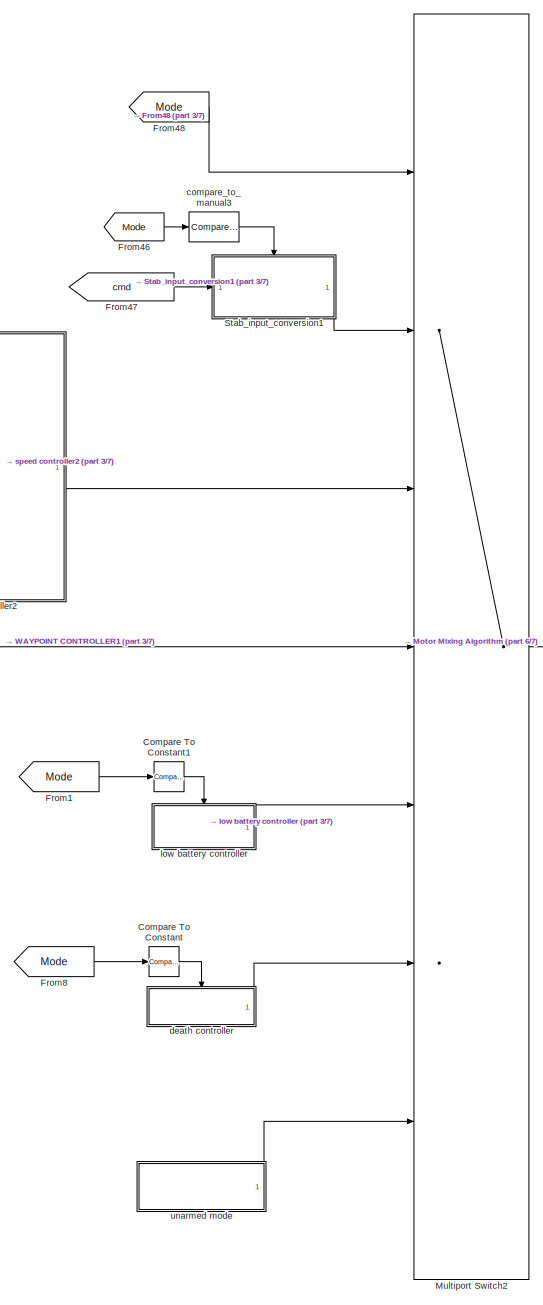
[diagram: root canvas - part 1/7, central region]
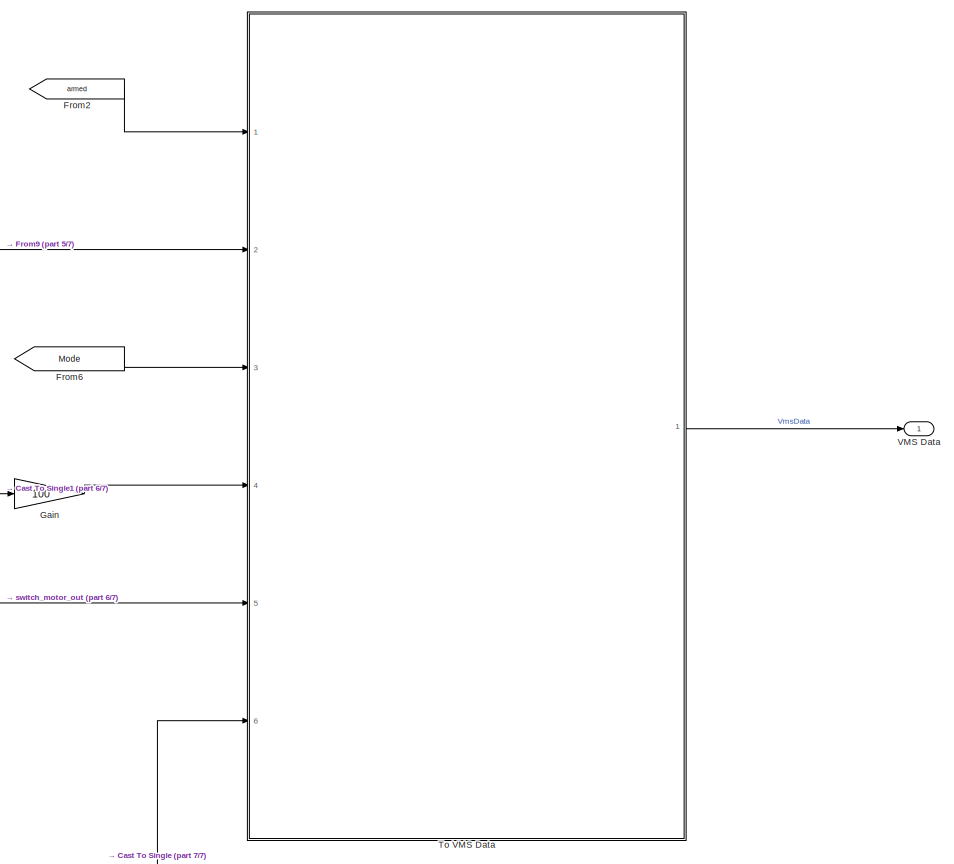
[diagram: root canvas - part 2/7, top right region]
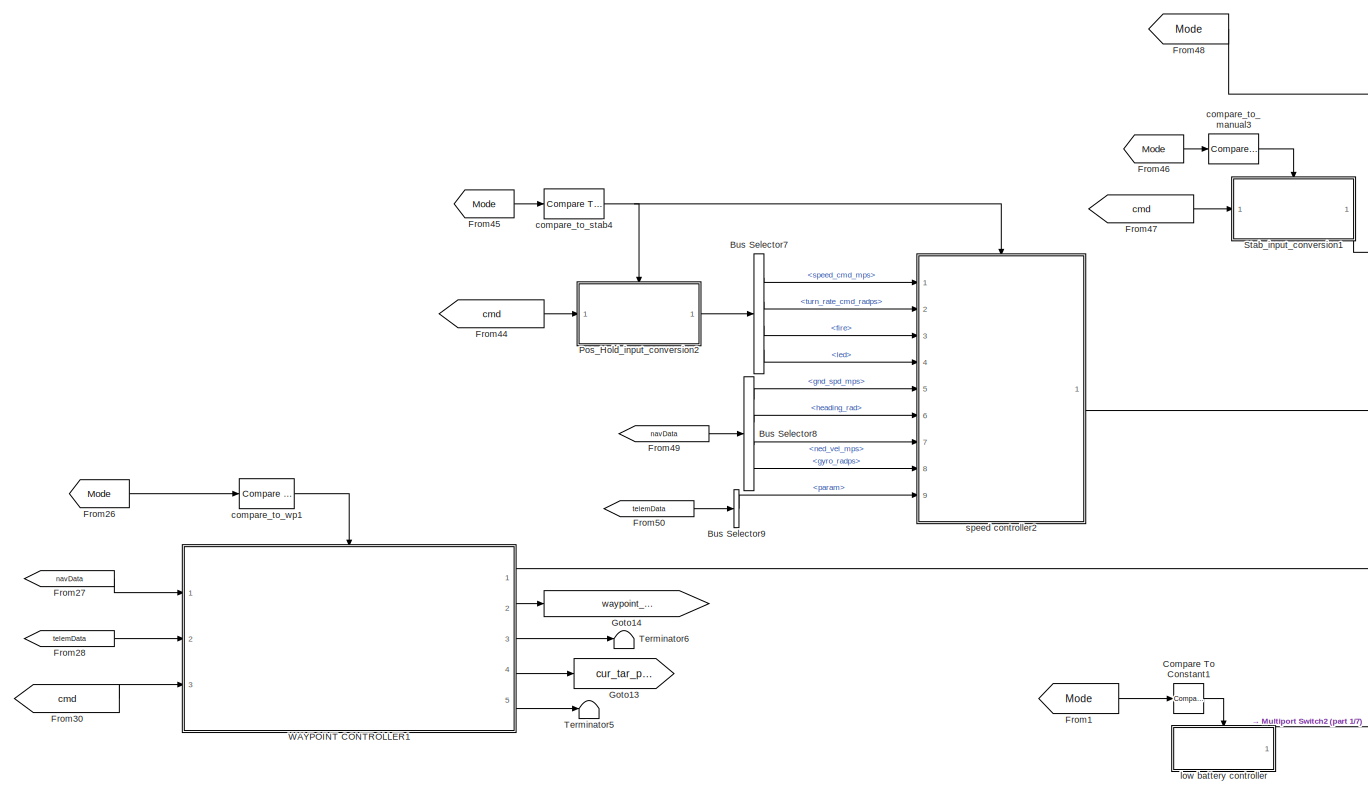
[diagram: root canvas - part 3/7, top center region]
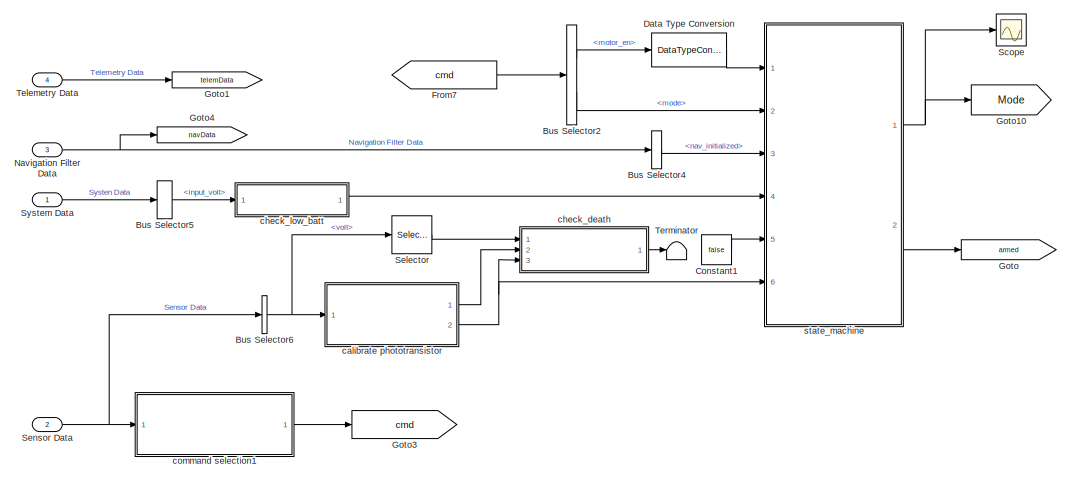
[diagram: root canvas - part 4/7, top left region]
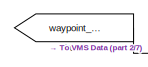
[diagram: root canvas - part 5/7, top right region]
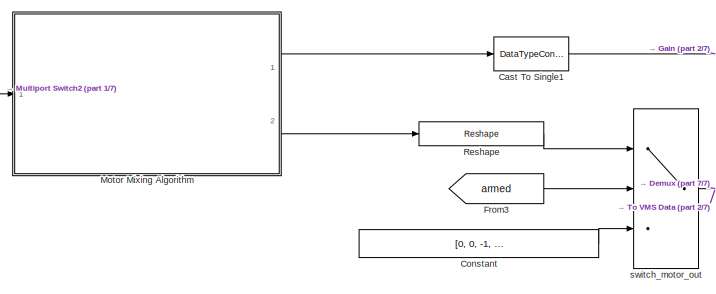
[diagram: root canvas - part 6/7, central region]
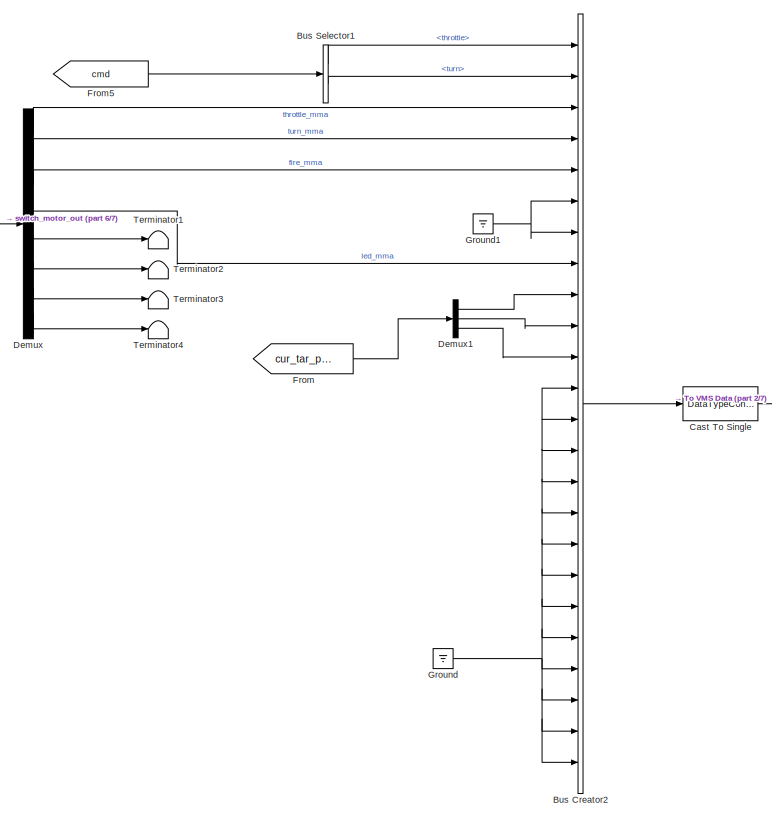
[diagram: root canvas - part 7/7, bottom right region]
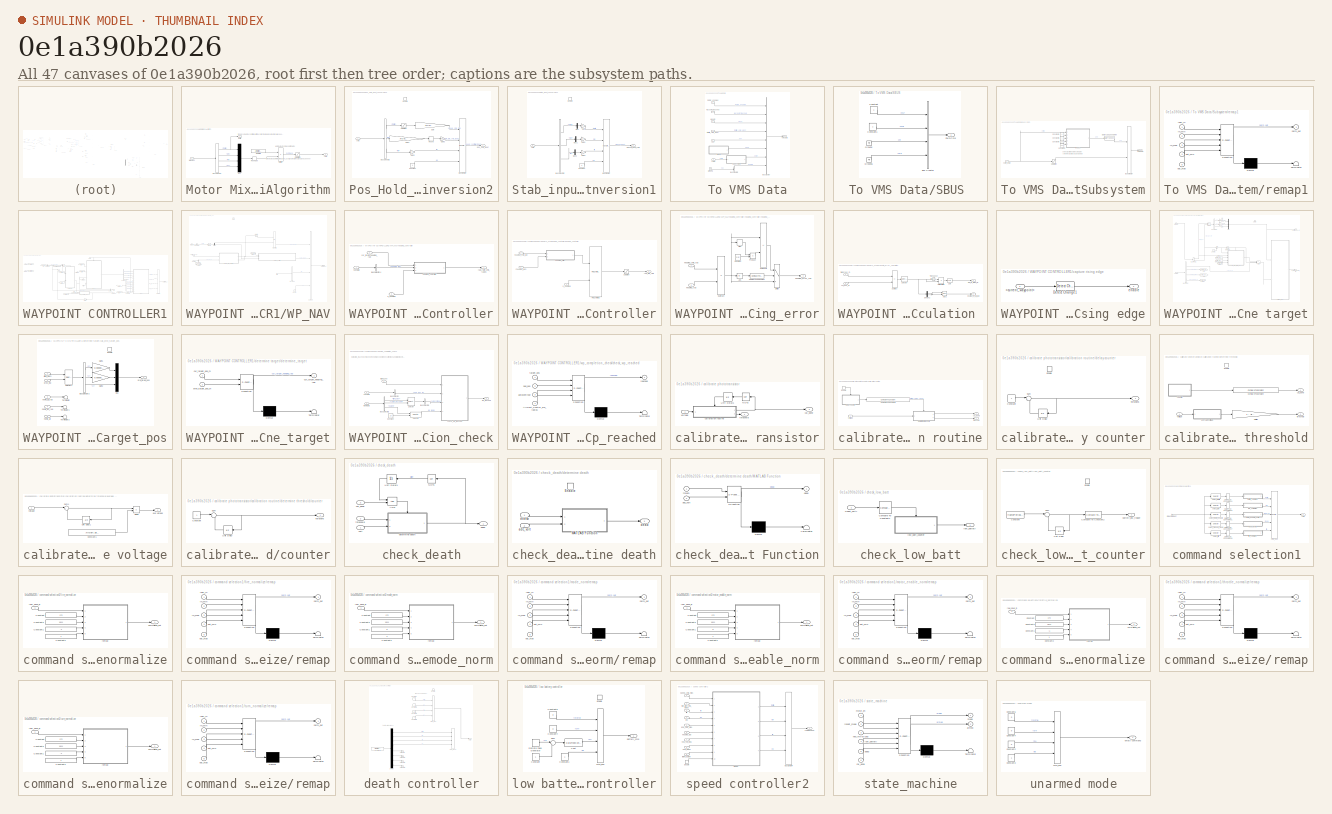
[diagram: thumbnail index - all 47 canvases of the model, root first then tree order]
MODEL slx_0e1a390b2026
KIND model
CONFIG AbsTol = auto
CONFIG EnableMultiTasking = off
CONFIG FixedStep = 1/100
CONFIG MaxStep = auto
CONFIG MinStep = auto
CONFIG RelTol = 1e-3
CONFIG SampleTimeConstraint = Unconstrained
CONFIG SolverName = FixedStepAuto
CONFIG StartTime = 0.0
CONFIG StopTime = 10.0
BLOCK [BusCreator] Bus Creator2
  DisplayOption = bar
  InheritFromInputs = on
  Inputs = 24
  Ports = [24, 1]
BLOCK [BusSelector] Bus Selector1
  OutputSignals = throttle,turn
  Ports = [1, 2]
BLOCK [BusSelector] Bus Selector2
  OutputSignals = motor_en,mode
  Ports = [1, 2]
BLOCK [BusSelector] Bus Selector4
  OutputSignals = nav_initialized
  Ports = [1, 1]
BLOCK [BusSelector] Bus Selector5
  OutputSignals = input_volt
  Ports = [1, 1]
BLOCK [BusSelector] Bus Selector6
  OutputSignals = adc.volt
  Ports = [1, 1]
BLOCK [BusSelector] Bus Selector7
  OutputSignals = speed_cmd_mps,turn_rate_cmd_radps,fire,led
  Ports = [1, 4]
BLOCK [BusSelector] Bus Selector8
  OutputSignals = gnd_spd_mps,heading_rad,ned_vel_mps,gyro_radps
  Ports = [1, 4]
BLOCK [BusSelector] Bus Selector9
  OutputSignals = param
  Ports = [1, 1]
BLOCK [DataTypeConversion] Cast To Single
  OutDataTypeStr = single
  RndMeth = Floor
  SaturateOnIntegerOverflow = off
BLOCK [DataTypeConversion] Cast To Single1
  OutDataTypeStr = single
  RndMeth = Floor
  SaturateOnIntegerOverflow = off
BLOCK [Reference] Compare To Constant  REF=simulink/Logic and Bit
Operations/Compare
To Constant
  Ports = [1, 1]
  SourceBlock = simulink/Logic and Bit\nOperations/Compare\nTo Constant
  SourceProductBaseCode = SL
  SourceType = Compare To Constant
BLOCK [Reference] Compare To Constant1  REF=simulink/Logic and Bit
Operations/Compare
To Constant
  Ports = [1, 1]
  SourceBlock = simulink/Logic and Bit\nOperations/Compare\nTo Constant
  SourceProductBaseCode = SL
  SourceType = Compare To Constant
BLOCK [Constant] Constant
  OutDataTypeStr = single
  SampleTime = framePeriod_s
  Value = [0, 0, -1, -1, 0, 0, 0, 0]
BLOCK [Constant] Constant1
  Value = false
BLOCK [DataTypeConversion] Data Type Conversion
  OutDataTypeStr = boolean
  RndMeth = Floor
  SaturateOnIntegerOverflow = off
BLOCK [Demux] Demux
  Outputs = 8
  Ports = [1, 8]
BLOCK [Demux] Demux1
  Outputs = 3
  Ports = [1, 3]
BLOCK [From] From
  GotoTag = cur_tar_pos
BLOCK [From] From1
  GotoTag = Mode
BLOCK [From] From2
  GotoTag = armed
BLOCK [From] From26
  GotoTag = Mode
BLOCK [From] From27
  GotoTag = navData
BLOCK [From] From28
  GotoTag = telemData
BLOCK [From] From3
  GotoTag = armed
BLOCK [From] From30
  GotoTag = cmd
BLOCK [From] From44
  GotoTag = cmd
BLOCK [From] From45
  GotoTag = Mode
BLOCK [From] From46
  GotoTag = Mode
BLOCK [From] From47
  GotoTag = cmd
BLOCK [From] From48
  GotoTag = Mode
BLOCK [From] From49
  GotoTag = navData
BLOCK [From] From5
  GotoTag = cmd
BLOCK [From] From50
  GotoTag = telemData
BLOCK [From] From6
  GotoTag = Mode
BLOCK [From] From7
  GotoTag = cmd
BLOCK [From] From8
  GotoTag = Mode
BLOCK [From] From9
  GotoTag = waypoint_reached
BLOCK [Gain] Gain
  Gain = 100
BLOCK [Goto] Goto
  GotoTag = armed
BLOCK [Goto] Goto1
  GotoTag = telemData
BLOCK [Goto] Goto10
  GotoTag = Mode
BLOCK [Goto] Goto13
  GotoTag = cur_tar_pos
BLOCK [Goto] Goto14
  GotoTag = waypoint_reached
BLOCK [Goto] Goto3
  GotoTag = cmd
BLOCK [Goto] Goto4
  GotoTag = navData
BLOCK [Ground] Ground
BLOCK [Ground] Ground1
BLOCK [SubSystem] Motor Mixing Algorithm
  Ports = [1, 2]
  RequestExecContextInheritance = off
BLOCK [BusSelector] Motor Mixing Algorithm/Bus Selector
  OutputSignals = throttle,turn,fire,led
  Ports = [1, 4]
BLOCK [Inport] Motor Mixing Algorithm/MMA Bus
BLOCK [Constant] Motor Mixing Algorithm/Motor Mix
  OutDataTypeStr = single
  SampleTime = framePeriod_s
  Value = Aircraft.Motor.mix
BLOCK [Product] Motor Mixing Algorithm/Multiply
  Inputs = **
  Multiplication = Matrix(*)
  OutDataTypeStr = single
  Ports = [2, 1]
BLOCK [Mux] Motor Mixing Algorithm/Mux
  DisplayOption = bar
  Ports = [4, 1]
BLOCK [Outport] Motor Mixing Algorithm/PWM
  Port = 2
BLOCK [Reshape] Motor Mixing Algorithm/Reshape
  OutputDimensionality = Column vector (2-D)
  Ports = [1, 1]
BLOCK [Saturate] Motor Mixing Algorithm/Saturation
  LowerLimit = -1
  UpperLimit = 1
BLOCK [Outport] Motor Mixing Algorithm/throttle
BLOCK [MultiPortSwitch] Multiport Switch2
  DataPortIndices = {0, 1, 2, 3, 4, 10}
  DataPortOrder = Specify indices
  DiagnosticForDefault = None
  InputSameDT = off
  Ports = [7, 1]
  SaturateOnIntegerOverflow = off
BLOCK [Inport] Navigation Filter Data
  BusOutputAsStruct = on
  OutDataTypeStr = Bus: NavData
  Port = 3
  SampleTime = framePeriod_s
BLOCK [SubSystem] Pos_Hold_input_conversion2
  Ports = [1, 1, 1]
  RequestExecContextInheritance = off
BLOCK [BusCreator] Pos_Hold_input_conversion2/Bus Creator
  DisplayOption = bar
  InheritFromInputs = on
  Inputs = 4
  Ports = [4, 1]
BLOCK [BusSelector] Pos_Hold_input_conversion2/Bus Selector2
  OutputSignals = throttle,turn,fire
  Ports = [1, 3]
BLOCK [Constant] Pos_Hold_input_conversion2/Constant
  OutDataTypeStr = single
  Value = -1
BLOCK [EnablePort] Pos_Hold_input_conversion2/Enable
  Ports = []
BLOCK [Gain] Pos_Hold_input_conversion2/Gain
  Gain = Aircraft.Control.max_speed_mps
BLOCK [Gain] Pos_Hold_input_conversion2/Gain1
  Gain = Aircraft.Control.max_turn_radps * 100
BLOCK [Gain] Pos_Hold_input_conversion2/Gain2
BLOCK [Gain] Pos_Hold_input_conversion2/Gain3
  Gain = 0.01
BLOCK [Rounding] Pos_Hold_input_conversion2/Round
  Operator = round
BLOCK [Saturate] Pos_Hold_input_conversion2/Saturation
  LowerLimit = 0
  UpperLimit = 1
BLOCK [Inport] Pos_Hold_input_conversion2/cmd
BLOCK [Outport] Pos_Hold_input_conversion2/pos_hold_input
BLOCK [Reshape] Reshape
  Ports = [1, 1]
BLOCK [Scope] Scope
  Floating = off
  NumInputPorts = 1
  Ports = [1]
  ScopeSpecificationString = Simulink.scopes.TimeScopeBlockCfg('CurrentConfiguration', extmgr.ConfigurationSet(extmgr.Configuration('Core','General UI',true),extmgr.Configuration('Core','Source UI',true),extmgr.Configuration('Sources','WiredSimulink',true),extmgr.Configuration('Visuals','Time Domain',true,'SerializedDisplays',{struct('MinYLimReal','-1.25','MaxYLimReal','11.25','YLabelReal','','MinYLimMag','0.00000','MaxYLimMa...<+1353ch>
BLOCK [Selector] Selector
  IndexOptions = Index vector (dialog)
  Indices = [1]
  InputPortWidth = 2
  OutputSizes = 1
  Ports = [1, 1]
BLOCK [Inport] Sensor Data
  BusOutputAsStruct = on
  OutDataTypeStr = Bus: SensorData
  Port = 2
  SampleTime = framePeriod_s
BLOCK [SubSystem] Stab_input_conversion1
  Ports = [1, 1, 1]
  RequestExecContextInheritance = off
BLOCK [BusCreator] Stab_input_conversion1/Bus Creator
  DisplayOption = bar
  InheritFromInputs = on
  Inputs = 4
  Ports = [4, 1]
BLOCK [BusSelector] Stab_input_conversion1/Bus Selector2
  OutputSignals = throttle,turn,fire
  Ports = [1, 3]
BLOCK [Constant] Stab_input_conversion1/Constant
  OutDataTypeStr = single
  Value = -1
BLOCK [EnablePort] Stab_input_conversion1/Enable
  Ports = []
BLOCK [Gain] Stab_input_conversion1/Gain
BLOCK [Gain] Stab_input_conversion1/Gain1
BLOCK [Gain] Stab_input_conversion1/Gain2
BLOCK [Mux] Stab_input_conversion1/Mux
  Commented = through
  DisplayOption = bar
  Inputs = 1
  Ports = [1, 1]
BLOCK [Mux] Stab_input_conversion1/Mux1
  Commented = through
  DisplayOption = bar
  Inputs = 1
  Ports = [1, 1]
BLOCK [Mux] Stab_input_conversion1/Mux2
  Commented = through
  DisplayOption = bar
  Inputs = 1
  Ports = [1, 1]
BLOCK [Inport] Stab_input_conversion1/cmd
BLOCK [Outport] Stab_input_conversion1/manual_input_cmd
BLOCK [Inport] System Data
  BusOutputAsStruct = on
  OutDataTypeStr = Bus: SysData
  SampleTime = framePeriod_s
BLOCK [Inport] Telemetry Data
  BusOutputAsStruct = on
  OutDataTypeStr = Bus: TelemData
  Port = 4
  SampleTime = framePeriod_s
BLOCK [Terminator] Terminator
BLOCK [Terminator] Terminator1
BLOCK [Terminator] Terminator2
BLOCK [Terminator] Terminator3
BLOCK [Terminator] Terminator4
BLOCK [Terminator] Terminator5
BLOCK [Terminator] Terminator6
BLOCK [SubSystem] To VMS Data
  Ports = [6, 1]
  RequestExecContextInheritance = off
BLOCK [Inport] To VMS Data/Aux
  Port = 6
BLOCK [BusCreator] To VMS Data/Bus Creator
  DisplayOption = bar
  InheritFromInputs = on
  Inputs = 8
  NonVirtualBus = on
  OutDataTypeStr = Bus: VmsData
  Ports = [8, 1]
BLOCK [BusCreator] To VMS Data/Bus Creator1
  DisplayOption = bar
  InheritFromInputs = on
  Inputs = 1
  OutDataTypeStr = Bus: AnalogData
  Ports = [1, 1]
BLOCK [Ground] To VMS Data/Ground
BLOCK [Inport] To VMS Data/Mode in
  Port = 3
BLOCK [Inport] To VMS Data/PWM In
  Port = 5
BLOCK [SubSystem] To VMS Data/SBUS 
  Ports = [0, 1]
  RequestExecContextInheritance = off
BLOCK [BusCreator] To VMS Data/SBUS /Bus Creator
  DisplayOption = bar
  InheritFromInputs = on
  Inputs = 4
  OutDataTypeStr = Bus: SbusCmd
  Ports = [4, 1]
BLOCK [Constant] To VMS Data/SBUS /Constant
  OutDataTypeStr = boolean
BLOCK [Constant] To VMS Data/SBUS /Constant1
  OutDataTypeStr = boolean
BLOCK [Ground] To VMS Data/SBUS /Ground
BLOCK [Ground] To VMS Data/SBUS /Ground1
BLOCK [Outport] To VMS Data/SBUS /PwmCmd
BLOCK [SubSystem] To VMS Data/Subsystem
  Ports = [1, 1]
  RequestExecContextInheritance = off
BLOCK [BusCreator] To VMS Data/Subsystem/Bus Creator
  DisplayOption = bar
  InheritFromInputs = off
  Inputs = 2
  NonVirtualBus = on
  OutDataTypeStr = Bus: PwmCmd
  Ports = [2, 1]
BLOCK [Constant] To VMS Data/Subsystem/Constant4
  Value = -1
BLOCK [Constant] To VMS Data/Subsystem/Constant5
BLOCK [Constant] To VMS Data/Subsystem/Constant6
  Value = 1000
BLOCK [Constant] To VMS Data/Subsystem/Constant7
  Value = 2000
BLOCK [DataTypeConversion] To VMS Data/Subsystem/Data Type Conversion
  OutDataTypeStr = int16
  RndMeth = Floor
  SaturateOnIntegerOverflow = off
BLOCK [Outport] To VMS Data/Subsystem/PwmCmd
BLOCK [Saturate] To VMS Data/Subsystem/Saturation
  LowerLimit = 1
  UpperLimit = 1
BLOCK [Inport] To VMS Data/Subsystem/norm_pwm
BLOCK [SubSystem] To VMS Data/Subsystem/remap1
  ErrorFcn = Stateflow.Translate.translate
  PermitHierarchicalResolution = ExplicitOnly
  Ports = [5, 1]
  RequestExecContextInheritance = off
  SFBlockType = MATLAB Function
  TreatAsAtomicUnit = on
BLOCK [Demux] To VMS Data/Subsystem/remap1/ Demux 
  Outputs = 1
  Ports = [1, 1]
BLOCK [S-Function] To VMS Data/Subsystem/remap1/ SFunction 
  EnableBusSupport = on
  FunctionName = sf_sfun
  PortCounts = [5 2]
  Ports = [5, 2]
  SFcnIsStateOwnerBlock = off
  SFunctionDeploymentMode = off
  Tag = Stateflow S-Function 2
BLOCK [Terminator] To VMS Data/Subsystem/remap1/ Terminator 
BLOCK [Inport] To VMS Data/Subsystem/remap1/in_max
  Port = 3
BLOCK [Inport] To VMS Data/Subsystem/remap1/in_min
  Port = 2
BLOCK [Outport] To VMS Data/Subsystem/remap1/norm_out
BLOCK [Inport] To VMS Data/Subsystem/remap1/out_max
  Port = 5
BLOCK [Inport] To VMS Data/Subsystem/remap1/out_min
  Port = 4
BLOCK [Inport] To VMS Data/Subsystem/remap1/raw_in
BLOCK [Outport] To VMS Data/VmsData
BLOCK [Inport] To VMS Data/motors_enabled
BLOCK [Inport] To VMS Data/throttle_cmd_prcnt
  Port = 4
BLOCK [Inport] To VMS Data/waypoint_reached
  Port = 2
BLOCK [Outport] VMS Data
  BusOutputAsStruct = on
  OutDataTypeStr = Bus: VmsData
  SampleTime = framePeriod_s
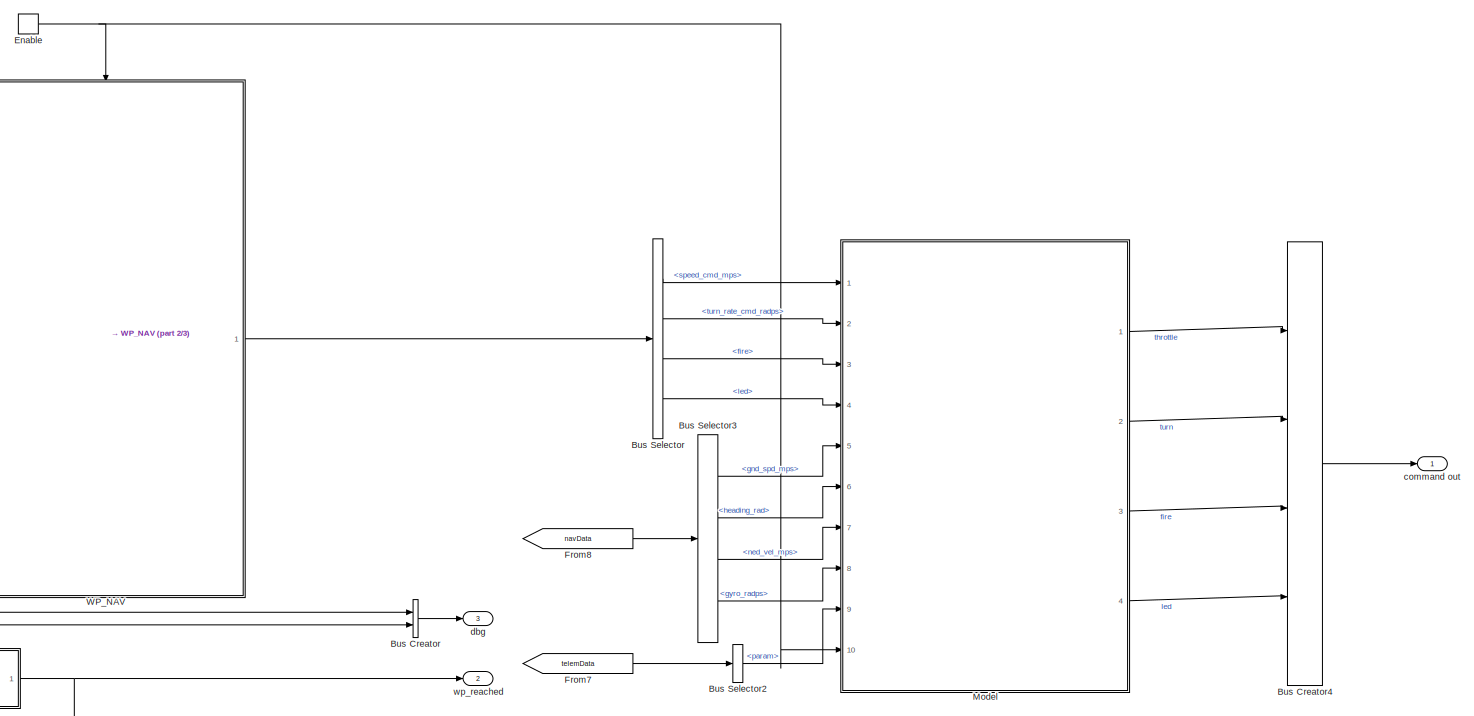
[diagram: WAYPOINT CONTROLLER1 - part 1/3, right side, full height]
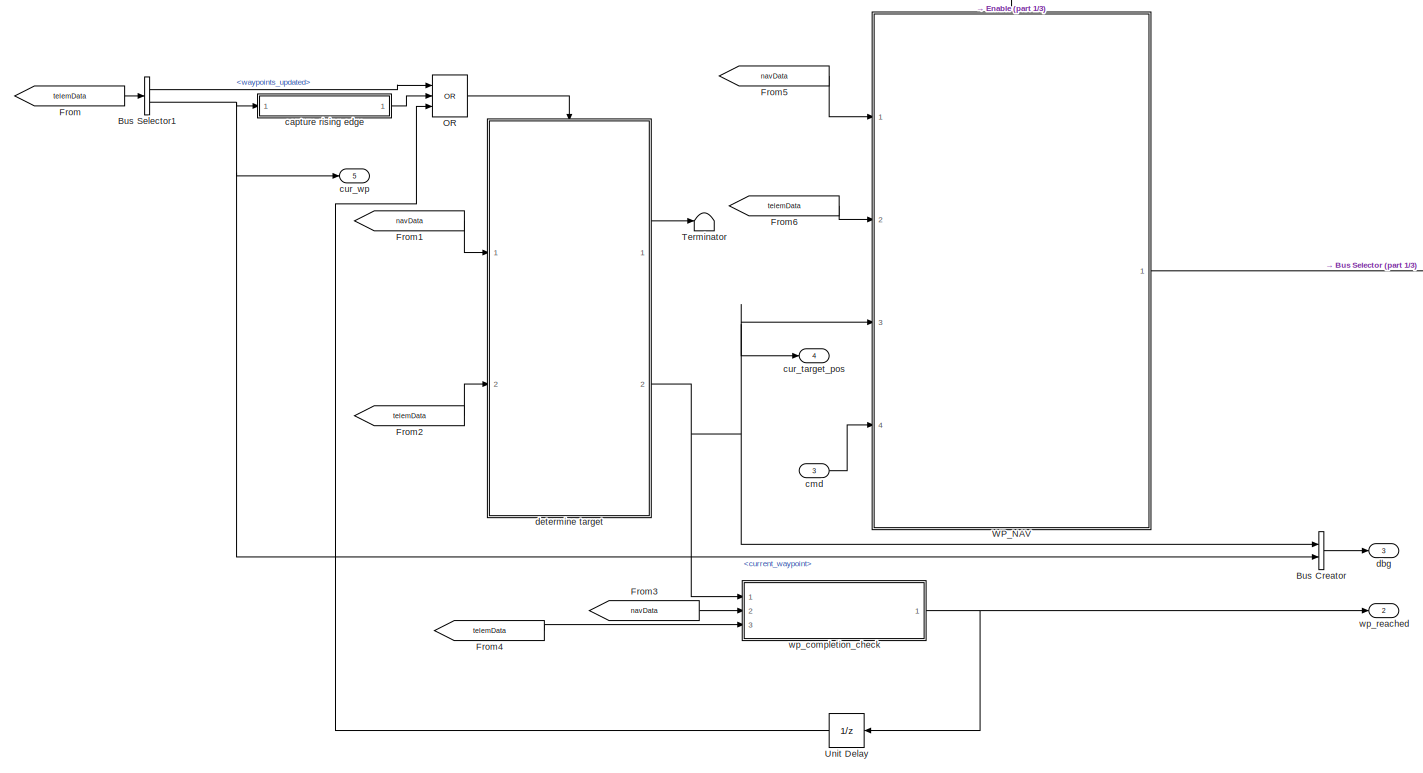
[diagram: WAYPOINT CONTROLLER1 - part 2/3, center side, full height]
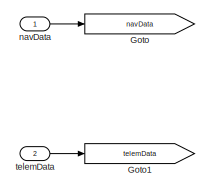
[diagram: WAYPOINT CONTROLLER1 - part 3/3, top left region]
BLOCK [SubSystem] WAYPOINT CONTROLLER1
  Ports = [3, 5, 1]
  RequestExecContextInheritance = off
BLOCK [BusCreator] WAYPOINT CONTROLLER1/Bus Creator
  DisplayOption = bar
  InheritFromInputs = on
  Inputs = 2
  Ports = [2, 1]
BLOCK [BusCreator] WAYPOINT CONTROLLER1/Bus Creator4
  DisplayOption = bar
  InheritFromInputs = on
  Inputs = throttle,turn,fire,led
  Ports = [4, 1]
BLOCK [BusSelector] WAYPOINT CONTROLLER1/Bus Selector
  OutputSignals = speed_cmd_mps,turn_rate_cmd_radps,fire,led
  Ports = [1, 4]
BLOCK [BusSelector] WAYPOINT CONTROLLER1/Bus Selector1
  OutputSignals = waypoints_updated,current_waypoint
  Ports = [1, 2]
BLOCK [BusSelector] WAYPOINT CONTROLLER1/Bus Selector2
  OutputSignals = param
  Ports = [1, 1]
BLOCK [BusSelector] WAYPOINT CONTROLLER1/Bus Selector3
  OutputSignals = gnd_spd_mps,heading_rad,ned_vel_mps,gyro_radps
  Ports = [1, 4]
BLOCK [EnablePort] WAYPOINT CONTROLLER1/Enable
  Ports = [0, 1]
  ShowOutputPort = on
BLOCK [From] WAYPOINT CONTROLLER1/From
  GotoTag = telemData
BLOCK [From] WAYPOINT CONTROLLER1/From1
  GotoTag = navData
BLOCK [From] WAYPOINT CONTROLLER1/From2
  GotoTag = telemData
BLOCK [From] WAYPOINT CONTROLLER1/From3
  GotoTag = navData
BLOCK [From] WAYPOINT CONTROLLER1/From4
  GotoTag = telemData
BLOCK [From] WAYPOINT CONTROLLER1/From5
  GotoTag = navData
BLOCK [From] WAYPOINT CONTROLLER1/From6
  GotoTag = telemData
BLOCK [From] WAYPOINT CONTROLLER1/From7
  GotoTag = telemData
BLOCK [From] WAYPOINT CONTROLLER1/From8
  GotoTag = navData
BLOCK [Goto] WAYPOINT CONTROLLER1/Goto
  GotoTag = navData
BLOCK [Goto] WAYPOINT CONTROLLER1/Goto1
  GotoTag = telemData
BLOCK [ModelReference] WAYPOINT CONTROLLER1/Model
  ModelNameDialog = ale_speed_controller.slx
  ModelReferenceVersion = 1.21
  Ports = [10, 4]
BLOCK [Logic] WAYPOINT CONTROLLER1/OR
  AllPortsSameDT = off
  IconShape = distinctive
  Inputs = 3
  Operator = OR
  OutDataTypeStr = boolean
  Ports = [3, 1]
BLOCK [Terminator] WAYPOINT CONTROLLER1/Terminator
BLOCK [UnitDelay] WAYPOINT CONTROLLER1/Unit Delay
  HasFrameUpgradeWarning = on
  SampleTime = -1
BLOCK [SubSystem] WAYPOINT CONTROLLER1/WP_NAV
  Ports = [4, 1, 1]
  RequestExecContextInheritance = off
BLOCK [BusCreator] WAYPOINT CONTROLLER1/WP_NAV/Bus Creator4
  DisplayOption = bar
  InheritFromInputs = on
  Inputs = 4
  Ports = [4, 1]
BLOCK [BusSelector] WAYPOINT CONTROLLER1/WP_NAV/Bus Selector
  OutputSignals = ned_pos_m
  Ports = [1, 1]
BLOCK [BusSelector] WAYPOINT CONTROLLER1/WP_NAV/Bus Selector1
  OutputSignals = fire
  Ports = [1, 1]
BLOCK [BusSelector] WAYPOINT CONTROLLER1/WP_NAV/Bus Selector2
  OutputSignals = param
  Ports = [1, 1]
BLOCK [Outport] WAYPOINT CONTROLLER1/WP_NAV/Command out
BLOCK [Constant] WAYPOINT CONTROLLER1/WP_NAV/Constant
  OutDataTypeStr = single
  Value = -1
BLOCK [Demux] WAYPOINT CONTROLLER1/WP_NAV/Demux
  Outputs = 2
  Ports = [1, 2]
BLOCK [EnablePort] WAYPOINT CONTROLLER1/WP_NAV/Enable
  Ports = []
BLOCK [From] WAYPOINT CONTROLLER1/WP_NAV/From
  GotoTag = navData
BLOCK [Goto] WAYPOINT CONTROLLER1/WP_NAV/Goto
  GotoTag = navData
BLOCK [Reference] WAYPOINT CONTROLLER1/WP_NAV/PID Controller2  REF=slpidlib/PID Controller
  Ports = [2, 1]
  SourceBlock = slpidlib/PID Controller
  SourceProductBaseCode = SL
  SourceType = PID 1dof
BLOCK [Saturate] WAYPOINT CONTROLLER1/WP_NAV/Saturation
  LowerLimit = 0
  UpperLimit = 20
BLOCK [Selector] WAYPOINT CONTROLLER1/WP_NAV/Selector
  IndexMode = Zero-based
  IndexOptions = Index vector (dialog)
  Indices = [5 6]
  InputPortWidth = 24
  OutputSizes = 1
  Ports = [1, 1]
BLOCK [Inport] WAYPOINT CONTROLLER1/WP_NAV/cmd
  Port = 4
BLOCK [Inport] WAYPOINT CONTROLLER1/WP_NAV/cur_target_pos_m
  Port = 3
BLOCK [SubSystem] WAYPOINT CONTROLLER1/WP_NAV/heading_controller
  Ports = [3, 1]
  RequestExecContextInheritance = off
BLOCK [BusSelector] WAYPOINT CONTROLLER1/WP_NAV/heading_controller/Bus Selector4
  OutputSignals = heading_rad
  Ports = [1, 1]
BLOCK [Inport] WAYPOINT CONTROLLER1/WP_NAV/heading_controller/P_heading
  Port = 3
BLOCK [Inport] WAYPOINT CONTROLLER1/WP_NAV/heading_controller/cur_target_heading_rad
  Port = 2
BLOCK [SubSystem] WAYPOINT CONTROLLER1/WP_NAV/heading_controller/heading_controller
  Ports = [3, 1]
  RequestExecContextInheritance = off
BLOCK [Inport] WAYPOINT CONTROLLER1/WP_NAV/heading_controller/heading_controller/<heading_rad>
  Port = 2
BLOCK [Reference] WAYPOINT CONTROLLER1/WP_NAV/heading_controller/heading_controller/PID Controller2  REF=slpidlib/PID Controller
  Ports = [2, 1]
  SourceBlock = slpidlib/PID Controller
  SourceProductBaseCode = SL
  SourceType = PID 1dof
BLOCK [Saturate] WAYPOINT CONTROLLER1/WP_NAV/heading_controller/heading_controller/Saturation
  LowerLimit = -Aircraft.Control.max_turn_radps
  UpperLimit = Aircraft.Control.max_turn_radps
BLOCK [Inport] WAYPOINT CONTROLLER1/WP_NAV/heading_controller/heading_controller/heading_cmd_rad
BLOCK [SubSystem] WAYPOINT CONTROLLER1/WP_NAV/heading_controller/heading_controller/heading_error
  Ports = [2, 1]
  RequestExecContextInheritance = off
BLOCK [Abs] WAYPOINT CONTROLLER1/WP_NAV/heading_controller/heading_controller/heading_error/Abs
  SaturateOnIntegerOverflow = off
BLOCK [Reference] WAYPOINT CONTROLLER1/WP_NAV/heading_controller/heading_controller/heading_error/Compare To Constant  REF=simulink/Logic and Bit
Operations/Compare
To Constant
  Ports = [1, 1]
  SourceBlock = simulink/Logic and Bit\nOperations/Compare\nTo Constant
  SourceProductBaseCode = SL
  SourceType = Compare To Constant
BLOCK [Constant] WAYPOINT CONTROLLER1/WP_NAV/heading_controller/heading_controller/heading_error/Constant
  OutDataTypeStr = single
  Value = 2*pi
BLOCK [Product] WAYPOINT CONTROLLER1/WP_NAV/heading_controller/heading_controller/heading_error/Product
  Ports = [2, 1]
BLOCK [Signum] WAYPOINT CONTROLLER1/WP_NAV/heading_controller/heading_controller/heading_error/Sign
BLOCK [Sum] WAYPOINT CONTROLLER1/WP_NAV/heading_controller/heading_controller/heading_error/Subtract
  IconShape = rectangular
  Inputs = +-
  Ports = [2, 1]
BLOCK [Sum] WAYPOINT CONTROLLER1/WP_NAV/heading_controller/heading_controller/heading_error/Subtract1
  IconShape = rectangular
  Inputs = +-
  Ports = [2, 1]
BLOCK [Switch] WAYPOINT CONTROLLER1/WP_NAV/heading_controller/heading_controller/heading_error/Switch
  Criteria = u2 > Threshold
  InputSameDT = off
  SaturateOnIntegerOverflow = off
BLOCK [Inport] WAYPOINT CONTROLLER1/WP_NAV/heading_controller/heading_controller/heading_error/heading_cmd_rad
BLOCK [Outport] WAYPOINT CONTROLLER1/WP_NAV/heading_controller/heading_controller/heading_error/heading_error_rad
BLOCK [Inport] WAYPOINT CONTROLLER1/WP_NAV/heading_controller/heading_controller/heading_error/heading_rad
  Port = 2
BLOCK [Inport] WAYPOINT CONTROLLER1/WP_NAV/heading_controller/heading_controller/p_heading
  Port = 3
BLOCK [Outport] WAYPOINT CONTROLLER1/WP_NAV/heading_controller/heading_controller/yaw_rate_cmd
BLOCK [Inport] WAYPOINT CONTROLLER1/WP_NAV/heading_controller/navData
BLOCK [Outport] WAYPOINT CONTROLLER1/WP_NAV/heading_controller/yaw_rate_cmd_radps
BLOCK [SubSystem] WAYPOINT CONTROLLER1/WP_NAV/horizontal_error_calculation 
  Ports = [2, 2]
  RequestExecContextInheritance = off
BLOCK [Trigonometry] WAYPOINT CONTROLLER1/WP_NAV/horizontal_error_calculation /Atan2
  Operator = atan2
  Ports = [2, 1]
BLOCK [Demux] WAYPOINT CONTROLLER1/WP_NAV/horizontal_error_calculation /Demux2
  Outputs = 2
  Ports = [1, 2]
BLOCK [Product] WAYPOINT CONTROLLER1/WP_NAV/horizontal_error_calculation /MatrixMultiply
  Multiplication = Matrix(*)
  Ports = [2, 1]
BLOCK [Selector] WAYPOINT CONTROLLER1/WP_NAV/horizontal_error_calculation /Selector
  IndexOptions = Index vector (dialog)
  Indices = [1 2]
  InputPortWidth = 3
  OutputSizes = 1
  Ports = [1, 1]
BLOCK [Sqrt] WAYPOINT CONTROLLER1/WP_NAV/horizontal_error_calculation /Sqrt
BLOCK [Sum] WAYPOINT CONTROLLER1/WP_NAV/horizontal_error_calculation /Subtract
  IconShape = rectangular
  Inputs = +-
  Ports = [2, 1]
BLOCK [Math] WAYPOINT CONTROLLER1/WP_NAV/horizontal_error_calculation /Transpose
  Operator = transpose
  Ports = [1, 1]
BLOCK [Outport] WAYPOINT CONTROLLER1/WP_NAV/horizontal_error_calculation /bearing_to_tar_rad
  Port = 2
BLOCK [Inport] WAYPOINT CONTROLLER1/WP_NAV/horizontal_error_calculation /cur_pos_m
  Port = 2
BLOCK [Outport] WAYPOINT CONTROLLER1/WP_NAV/horizontal_error_calculation /dist_to_target_m
BLOCK [Inport] WAYPOINT CONTROLLER1/WP_NAV/horizontal_error_calculation /target_pos_m
BLOCK [Inport] WAYPOINT CONTROLLER1/WP_NAV/navData
BLOCK [Inport] WAYPOINT CONTROLLER1/WP_NAV/telemData
  Port = 2
BLOCK [SubSystem] WAYPOINT CONTROLLER1/capture rising edge
  Ports = [1, 1]
  RequestExecContextInheritance = off
BLOCK [Inport] WAYPOINT CONTROLLER1/capture rising edge/<current_waypoint>
BLOCK [Reference] WAYPOINT CONTROLLER1/capture rising edge/Detect Change1  REF=simulink/Logic and Bit
Operations/Detect
Change
  Ports = [1, 1]
  SourceBlock = simulink/Logic and Bit\nOperations/Detect\nChange
  SourceProductBaseCode = SL
  SourceType = Detect Change
BLOCK [Outport] WAYPOINT CONTROLLER1/capture rising edge/enable
BLOCK [Inport] WAYPOINT CONTROLLER1/cmd
  Port = 3
BLOCK [Outport] WAYPOINT CONTROLLER1/command out
BLOCK [Outport] WAYPOINT CONTROLLER1/cur_target_pos
  Port = 4
BLOCK [Outport] WAYPOINT CONTROLLER1/cur_wp
  Port = 5
BLOCK [Outport] WAYPOINT CONTROLLER1/dbg
  Port = 3
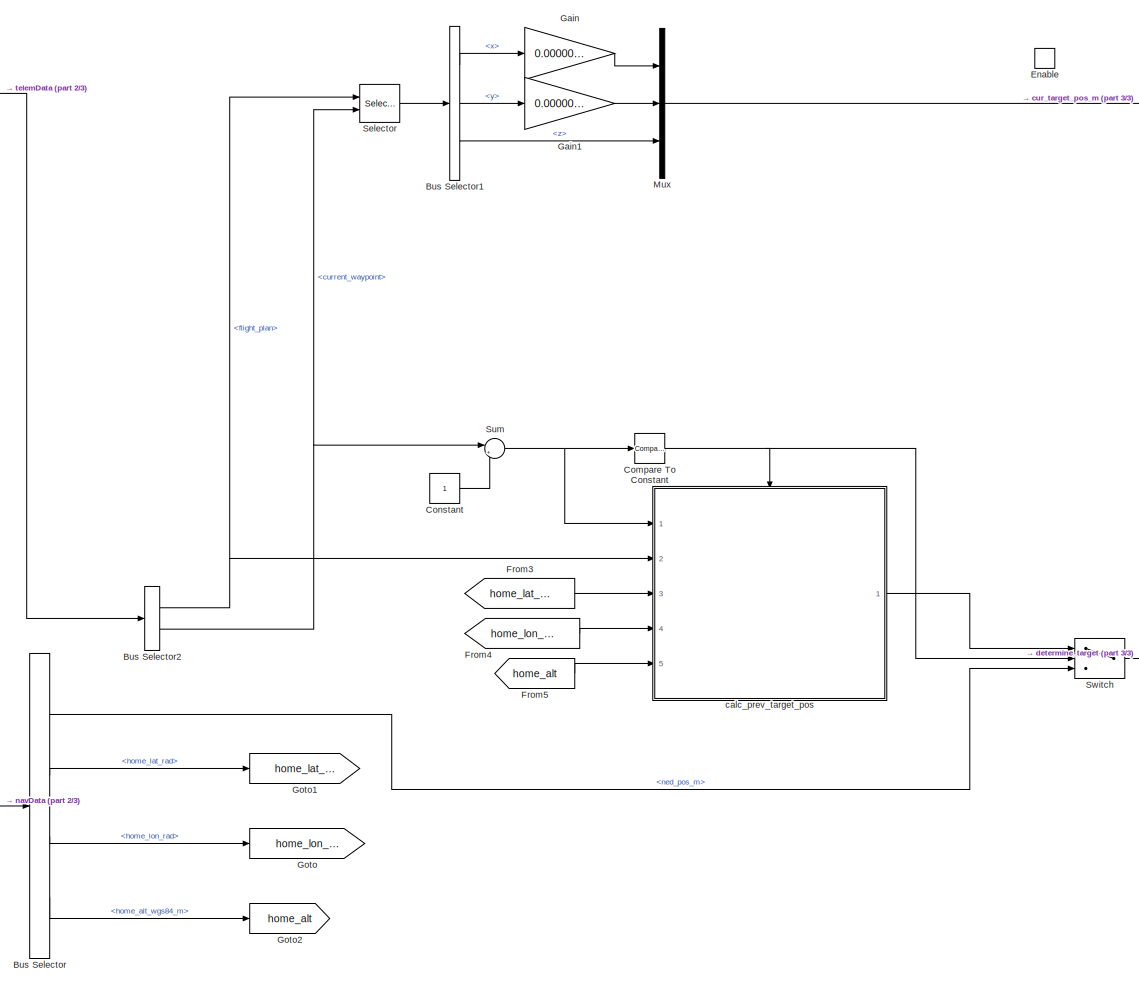
[diagram: WAYPOINT CONTROLLER1/determine target - part 1/3, center side, full height]
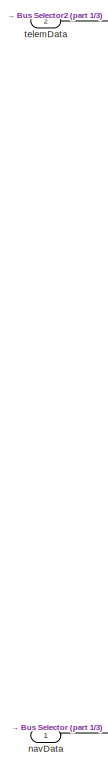
[diagram: WAYPOINT CONTROLLER1/determine target - part 2/3, middle left region]
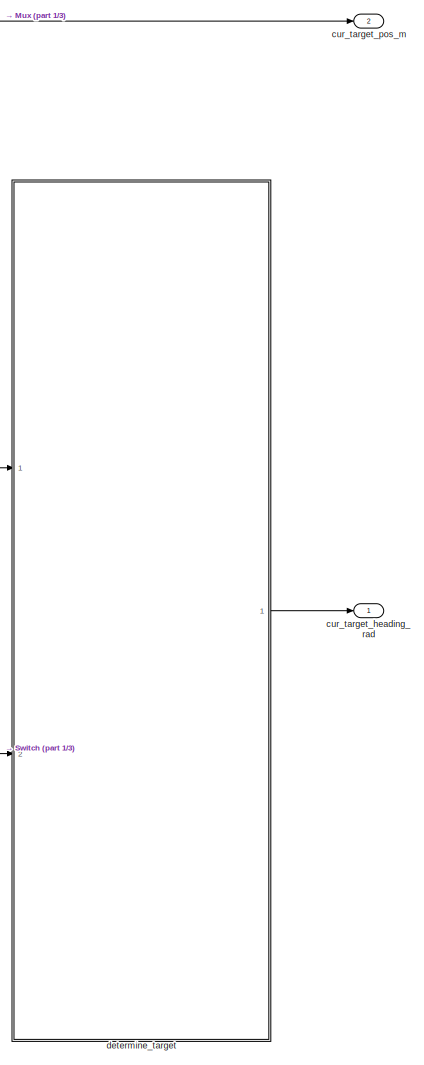
[diagram: WAYPOINT CONTROLLER1/determine target - part 3/3, right side, full height]
BLOCK [SubSystem] WAYPOINT CONTROLLER1/determine target
  Ports = [2, 2, 1]
  RequestExecContextInheritance = off
BLOCK [BusSelector] WAYPOINT CONTROLLER1/determine target/Bus Selector
  OutputSignals = ned_pos_m,home_lat_rad,home_lon_rad,home_alt_wgs84_m
  Ports = [1, 4]
BLOCK [BusSelector] WAYPOINT CONTROLLER1/determine target/Bus Selector1
  OutputSignals = x,y,z
  Ports = [1, 3]
BLOCK [BusSelector] WAYPOINT CONTROLLER1/determine target/Bus Selector2
  OutputSignals = flight_plan,current_waypoint
  Ports = [1, 2]
BLOCK [Reference] WAYPOINT CONTROLLER1/determine target/Compare To Constant  REF=simulink/Logic and Bit
Operations/Compare
To Constant
  Ports = [1, 1]
  SourceBlock = simulink/Logic and Bit\nOperations/Compare\nTo Constant
  SourceProductBaseCode = SL
  SourceType = Compare To Constant
BLOCK [Constant] WAYPOINT CONTROLLER1/determine target/Constant
BLOCK [EnablePort] WAYPOINT CONTROLLER1/determine target/Enable
  Ports = []
BLOCK [From] WAYPOINT CONTROLLER1/determine target/From3
  GotoTag = home_lat_rad
BLOCK [From] WAYPOINT CONTROLLER1/determine target/From4
  GotoTag = home_lon_rad
BLOCK [From] WAYPOINT CONTROLLER1/determine target/From5
  GotoTag = home_alt
BLOCK [Gain] WAYPOINT CONTROLLER1/determine target/Gain
  Gain = 0.0000001
  OutDataTypeStr = single
BLOCK [Gain] WAYPOINT CONTROLLER1/determine target/Gain1
  Gain = 0.0000001
  OutDataTypeStr = single
BLOCK [Goto] WAYPOINT CONTROLLER1/determine target/Goto
  GotoTag = home_lon_rad
BLOCK [Goto] WAYPOINT CONTROLLER1/determine target/Goto1
  GotoTag = home_lat_rad
BLOCK [Goto] WAYPOINT CONTROLLER1/determine target/Goto2
  GotoTag = home_alt
BLOCK [Mux] WAYPOINT CONTROLLER1/determine target/Mux
  DisplayOption = bar
  Inputs = 3
  Ports = [3, 1]
BLOCK [Selector] WAYPOINT CONTROLLER1/determine target/Selector
  IndexMode = Zero-based
  IndexOptions = Index vector (port)
  Indices = [1 3]
  InputPortWidth = 100
  OutputSizes = 1
  Ports = [2, 1]
BLOCK [Sum] WAYPOINT CONTROLLER1/determine target/Sum
  Inputs = |+-
  Ports = [2, 1]
BLOCK [Switch] WAYPOINT CONTROLLER1/determine target/Switch
  Criteria = u2 > Threshold
  InputSameDT = off
  SaturateOnIntegerOverflow = off
BLOCK [SubSystem] WAYPOINT CONTROLLER1/determine target/calc_prev_target_pos
  Ports = [5, 1, 1]
  RequestExecContextInheritance = off
BLOCK [Inport] WAYPOINT CONTROLLER1/determine target/calc_prev_target_pos/<flight_plan>
  Port = 2
BLOCK [BusSelector] WAYPOINT CONTROLLER1/determine target/calc_prev_target_pos/Bus Selector2
  OutputSignals = x,y,z
  Ports = [1, 3]
BLOCK [EnablePort] WAYPOINT CONTROLLER1/determine target/calc_prev_target_pos/Enable
  Ports = []
BLOCK [Gain] WAYPOINT CONTROLLER1/determine target/calc_prev_target_pos/Gain1
  Gain = 0.0000001
  OutDataTypeStr = single
BLOCK [Gain] WAYPOINT CONTROLLER1/determine target/calc_prev_target_pos/Gain2
  Gain = 0.0000001
  OutDataTypeStr = single
BLOCK [Mux] WAYPOINT CONTROLLER1/determine target/calc_prev_target_pos/Mux
  DisplayOption = bar
  Inputs = 3
  Ports = [3, 1]
BLOCK [Selector] WAYPOINT CONTROLLER1/determine target/calc_prev_target_pos/Selector1
  IndexMode = Zero-based
  IndexOptions = Index vector (port)
  Indices = [1 3]
  InputPortWidth = 100
  OutputSizes = 1
  Ports = [2, 1]
BLOCK [Terminator] WAYPOINT CONTROLLER1/determine target/calc_prev_target_pos/Terminator
BLOCK [Terminator] WAYPOINT CONTROLLER1/determine target/calc_prev_target_pos/Terminator1
BLOCK [Terminator] WAYPOINT CONTROLLER1/determine target/calc_prev_target_pos/Terminator2
BLOCK [Inport] WAYPOINT CONTROLLER1/determine target/calc_prev_target_pos/home_alt
  Port = 5
BLOCK [Inport] WAYPOINT CONTROLLER1/determine target/calc_prev_target_pos/home_lat_rad
  Port = 3
BLOCK [Inport] WAYPOINT CONTROLLER1/determine target/calc_prev_target_pos/home_lon_rad
  Port = 4
BLOCK [Outport] WAYPOINT CONTROLLER1/determine target/calc_prev_target_pos/pref_target_pos
BLOCK [Inport] WAYPOINT CONTROLLER1/determine target/calc_prev_target_pos/prev_ind
BLOCK [Outport] WAYPOINT CONTROLLER1/determine target/cur_target_heading_rad
BLOCK [Outport] WAYPOINT CONTROLLER1/determine target/cur_target_pos_m
  Port = 2
BLOCK [SubSystem] WAYPOINT CONTROLLER1/determine target/determine_target
  ErrorFcn = Stateflow.Translate.translate
  PermitHierarchicalResolution = ExplicitOnly
  Ports = [2, 1]
  RequestExecContextInheritance = off
  SFBlockType = MATLAB Function
  TreatAsAtomicUnit = on
BLOCK [Demux] WAYPOINT CONTROLLER1/determine target/determine_target/ Demux 
  Outputs = 1
  Ports = [1, 1]
BLOCK [S-Function] WAYPOINT CONTROLLER1/determine target/determine_target/ SFunction 
  EnableBusSupport = on
  FunctionName = sf_sfun
  PortCounts = [2 2]
  Ports = [2, 2]
  SFcnIsStateOwnerBlock = off
  SFunctionDeploymentMode = off
  Tag = Stateflow S-Function 6
BLOCK [Terminator] WAYPOINT CONTROLLER1/determine target/determine_target/ Terminator 
BLOCK [Outport] WAYPOINT CONTROLLER1/determine target/determine_target/cur_target_heading_rad
BLOCK [Inport] WAYPOINT CONTROLLER1/determine target/determine_target/cur_target_pos_m
BLOCK [Inport] WAYPOINT CONTROLLER1/determine target/determine_target/prev_target_pos_m
  Port = 2
BLOCK [Inport] WAYPOINT CONTROLLER1/determine target/navData
BLOCK [Inport] WAYPOINT CONTROLLER1/determine target/telemData
  Port = 2
BLOCK [Inport] WAYPOINT CONTROLLER1/navData
BLOCK [Inport] WAYPOINT CONTROLLER1/telemData
  Port = 2
BLOCK [SubSystem] WAYPOINT CONTROLLER1/wp_completion_check
  Ports = [3, 1]
  RequestExecContextInheritance = off
BLOCK [BusSelector] WAYPOINT CONTROLLER1/wp_completion_check/Bus Selector
  OutputSignals = ned_pos_m
  Ports = [1, 1]
BLOCK [BusSelector] WAYPOINT CONTROLLER1/wp_completion_check/Bus Selector1
  OutputSignals = autocontinue
  Ports = [1, 1]
BLOCK [BusSelector] WAYPOINT CONTROLLER1/wp_completion_check/Bus Selector2
  OutputSignals = flight_plan,current_waypoint,param
  Ports = [1, 3]
BLOCK [Constant] WAYPOINT CONTROLLER1/wp_completion_check/Constant
  Value = 10
BLOCK [Selector] WAYPOINT CONTROLLER1/wp_completion_check/Selector
  IndexMode = Zero-based
  IndexOptions = Index vector (port)
  Indices = [1 3]
  InputPortWidth = 100
  OutputSizes = 1
  Ports = [2, 1]
BLOCK [Selector] WAYPOINT CONTROLLER1/wp_completion_check/Selector1
  IndexMode = Zero-based
  IndexOptions = Index vector (port)
  Indices = 10
  InputPortWidth = 24
  OutputSizes = 1
  Ports = [2, 1]
BLOCK [SubSystem] WAYPOINT CONTROLLER1/wp_completion_check/check_wp_reached
  ErrorFcn = Stateflow.Translate.translate
  PermitHierarchicalResolution = ExplicitOnly
  Ports = [4, 1]
  RequestExecContextInheritance = off
  SFBlockType = MATLAB Function
  TreatAsAtomicUnit = on
BLOCK [Demux] WAYPOINT CONTROLLER1/wp_completion_check/check_wp_reached/ Demux 
  Outputs = 1
  Ports = [1, 1]
BLOCK [S-Function] WAYPOINT CONTROLLER1/wp_completion_check/check_wp_reached/ SFunction 
  EnableBusSupport = on
  FunctionName = sf_sfun
  PortCounts = [4 2]
  Ports = [4, 2]
  SFcnIsStateOwnerBlock = off
  SFunctionDeploymentMode = off
  Tag = Stateflow S-Function 7
BLOCK [Terminator] WAYPOINT CONTROLLER1/wp_completion_check/check_wp_reached/ Terminator 
BLOCK [Inport] WAYPOINT CONTROLLER1/wp_completion_check/check_wp_reached/Aircraft_Control_wp_radius
  Port = 4
BLOCK [Inport] WAYPOINT CONTROLLER1/wp_completion_check/check_wp_reached/autocontinue
  Port = 3
BLOCK [Inport] WAYPOINT CONTROLLER1/wp_completion_check/check_wp_reached/ned_pos
  Port = 2
BLOCK [Outport] WAYPOINT CONTROLLER1/wp_completion_check/check_wp_reached/reached
BLOCK [Inport] WAYPOINT CONTROLLER1/wp_completion_check/check_wp_reached/target_pos
BLOCK [Inport] WAYPOINT CONTROLLER1/wp_completion_check/navData
  Port = 2
BLOCK [Inport] WAYPOINT CONTROLLER1/wp_completion_check/target_pos
BLOCK [Inport] WAYPOINT CONTROLLER1/wp_completion_check/telemData
  Port = 3
BLOCK [Outport] WAYPOINT CONTROLLER1/wp_completion_check/wp_reached
BLOCK [Outport] WAYPOINT CONTROLLER1/wp_reached
  Port = 2
BLOCK [SubSystem] calibrate phototransistor
  Ports = [1, 2]
  RequestExecContextInheritance = off
BLOCK [Logic] calibrate phototransistor/NOT2
  AllPortsSameDT = off
  IconShape = distinctive
  Operator = NOT
  OutDataTypeStr = boolean
  Ports = [1, 1]
BLOCK [UnitDelay] calibrate phototransistor/Unit Delay1
  HasFrameUpgradeWarning = on
  InitialCondition = true
  SampleTime = -1
BLOCK [Outport] calibrate phototransistor/cal_done
  Port = 2
BLOCK [SubSystem] calibrate phototransistor/calibration routine
  Ports = [1, 2, 1]
  RequestExecContextInheritance = off
BLOCK [Reference] calibrate phototransistor/calibration routine/Compare To Constant1  REF=simulink/Logic and Bit
Operations/Compare
To Constant
  Ports = [1, 1]
  SourceBlock = simulink/Logic and Bit\nOperations/Compare\nTo Constant
  SourceProductBaseCode = SL
  SourceType = Compare To Constant
BLOCK [EnablePort] calibrate phototransistor/calibration routine/Enable
  Ports = [0, 1]
  ShowOutputPort = on
BLOCK [Outport] calibrate phototransistor/calibration routine/cal_done
BLOCK [SubSystem] calibrate phototransistor/calibration routine/delay counter
  Ports = [0, 1, 1]
  RequestExecContextInheritance = off
BLOCK [Constant] calibrate phototransistor/calibration routine/delay counter/Constant
BLOCK [EnablePort] calibrate phototransistor/calibration routine/delay counter/Enable
  Ports = []
BLOCK [Sum] calibrate phototransistor/calibration routine/delay counter/Sum
  Inputs = |++
  Ports = [2, 1]
BLOCK [UnitDelay] calibrate phototransistor/calibration routine/delay counter/Unit Delay
  HasFrameUpgradeWarning = on
  SampleTime = -1
BLOCK [Outport] calibrate phototransistor/calibration routine/delay counter/iterations
  PortDimensions = 1
BLOCK [SubSystem] calibrate phototransistor/calibration routine/determine threshold
  Ports = [1, 2, 1]
  RequestExecContextInheritance = off
BLOCK [Reference] calibrate phototransistor/calibration routine/determine threshold/Compare To Constant  REF=simulink/Logic and Bit
Operations/Compare
To Constant
  Ports = [1, 1]
  SourceBlock = simulink/Logic and Bit\nOperations/Compare\nTo Constant
  SourceProductBaseCode = SL
  SourceType = Compare To Constant
BLOCK [EnablePort] calibrate phototransistor/calibration routine/determine threshold/Enable
  Ports = []
BLOCK [Gain] calibrate phototransistor/calibration routine/determine threshold/Multiply
  Gain = 1 - Aircraft.Control.death_buffer
BLOCK [SubSystem] calibrate phototransistor/calibration routine/determine threshold/average voltage
  Ports = [1, 1]
  RequestExecContextInheritance = off
BLOCK [Constant] calibrate phototransistor/calibration routine/determine threshold/average voltage/Constant1
  Value = Aircraft.Sensors.phototransistor.cal_count
BLOCK [Product] calibrate phototransistor/calibration routine/determine threshold/average voltage/Divide
  Inputs = */
  Ports = [2, 1]
BLOCK [Sum] calibrate phototransistor/calibration routine/determine threshold/average voltage/Sum1
  Inputs = |++
  Ports = [2, 1]
BLOCK [UnitDelay] calibrate phototransistor/calibration routine/determine threshold/average voltage/Unit Delay1
  HasFrameUpgradeWarning = on
  SampleTime = -1
BLOCK [Outport] calibrate phototransistor/calibration routine/determine threshold/average voltage/avg voltage
BLOCK [Inport] calibrate phototransistor/calibration routine/determine threshold/average voltage/voltage
BLOCK [Outport] calibrate phototransistor/calibration routine/determine threshold/cal_done
BLOCK [SubSystem] calibrate phototransistor/calibration routine/determine threshold/counter
  Ports = [0, 1]
  RequestExecContextInheritance = off
BLOCK [Constant] calibrate phototransistor/calibration routine/determine threshold/counter/Constant
BLOCK [Sum] calibrate phototransistor/calibration routine/determine threshold/counter/Sum
  Inputs = |++
  Ports = [2, 1]
BLOCK [UnitDelay] calibrate phototransistor/calibration routine/determine threshold/counter/Unit Delay
  HasFrameUpgradeWarning = on
  SampleTime = -1
BLOCK [Outport] calibrate phototransistor/calibration routine/determine threshold/counter/iterations
  PortDimensions = 1
BLOCK [Outport] calibrate phototransistor/calibration routine/determine threshold/threshold
  Port = 2
BLOCK [Inport] calibrate phototransistor/calibration routine/determine threshold/voltage
BLOCK [Outport] calibrate phototransistor/calibration routine/threshold
  Port = 2
BLOCK [Inport] calibrate phototransistor/calibration routine/voltage
BLOCK [Outport] calibrate phototransistor/threshold
BLOCK [Inport] calibrate phototransistor/voltage
BLOCK [SubSystem] check_death
  Ports = [3, 1]
  RequestExecContextInheritance = off
BLOCK [Logic] check_death/AND
  AllPortsSameDT = off
  IconShape = distinctive
  OutDataTypeStr = boolean
  Ports = [2, 1]
BLOCK [Logic] check_death/NOT1
  AllPortsSameDT = off
  IconShape = distinctive
  Operator = NOT
  OutDataTypeStr = boolean
  Ports = [1, 1]
BLOCK [UnitDelay] check_death/Unit Delay1
  HasFrameUpgradeWarning = on
  InitialCondition = true
  SampleTime = -1
BLOCK [Inport] check_death/cal_done
  Port = 3
BLOCK [Outport] check_death/dead
BLOCK [SubSystem] check_death/determine death
  Ports = [2, 1, 1]
  RequestExecContextInheritance = off
BLOCK [EnablePort] check_death/determine death/Enable
  Ports = []
BLOCK [SubSystem] check_death/determine death/MATLAB Function
  ErrorFcn = Stateflow.Translate.translate
  PermitHierarchicalResolution = ExplicitOnly
  Ports = [2, 1]
  RequestExecContextInheritance = off
  SFBlockType = MATLAB Function
  TreatAsAtomicUnit = on
BLOCK [Demux] check_death/determine death/MATLAB Function/ Demux 
  Outputs = 1
  Ports = [1, 1]
BLOCK [S-Function] check_death/determine death/MATLAB Function/ SFunction 
  EnableBusSupport = on
  FunctionName = sf_sfun
  PortCounts = [2 2]
  Ports = [2, 2]
  SFcnIsStateOwnerBlock = off
  SFunctionDeploymentMode = off
  Tag = Stateflow S-Function 1
BLOCK [Terminator] check_death/determine death/MATLAB Function/ Terminator 
BLOCK [Inport] check_death/determine death/MATLAB Function/adc_volt
  Port = 2
BLOCK [Outport] check_death/determine death/MATLAB Function/dead
BLOCK [Inport] check_death/determine death/MATLAB Function/thresh
BLOCK [Inport] check_death/determine death/adc_volt
  Port = 2
BLOCK [Outport] check_death/determine death/dead
BLOCK [Inport] check_death/determine death/thresh
BLOCK [Inport] check_death/threshold
  Port = 2
BLOCK [Inport] check_death/volt
BLOCK [SubSystem] check_low_batt
  Ports = [1, 1]
  RequestExecContextInheritance = off
BLOCK [Inport] check_low_batt/<input_volt>
BLOCK [Reference] check_low_batt/Compare To Constant4  REF=simulink/Logic and Bit
Operations/Compare
To Constant
  Ports = [1, 1]
  SourceBlock = simulink/Logic and Bit\nOperations/Compare\nTo Constant
  SourceProductBaseCode = SL
  SourceType = Compare To Constant
BLOCK [SubSystem] check_low_batt/low_batt_counter
  Ports = [0, 1, 1]
  RequestExecContextInheritance = off
BLOCK [Reference] check_low_batt/low_batt_counter/Compare To Constant2  REF=simulink/Logic and Bit
Operations/Compare
To Constant
  Ports = [1, 1]
  SourceBlock = simulink/Logic and Bit\nOperations/Compare\nTo Constant
  SourceProductBaseCode = SL
  SourceType = Compare To Constant
BLOCK [Constant] check_low_batt/low_batt_counter/Constant
  Value = framePeriod_s
BLOCK [EnablePort] check_low_batt/low_batt_counter/Enable
  Ports = []
  StatesWhenEnabling = reset
BLOCK [Sum] check_low_batt/low_batt_counter/Sum
  Inputs = |++
  Ports = [2, 1]
BLOCK [UnitDelay] check_low_batt/low_batt_counter/Unit Delay
  HasFrameUpgradeWarning = on
  NameLocation = top
  SampleTime = -1
BLOCK [Outport] check_low_batt/low_batt_counter/battery_low_trigger
BLOCK [Outport] check_low_batt/low_battery
BLOCK [SubSystem] command selection1
  Ports = [1, 1]
  RequestExecContextInheritance = off
BLOCK [DataTypeConversion] command selection1/Data Type Conversion1
  OutDataTypeStr = single
  RndMeth = Floor
  SaturateOnIntegerOverflow = off
BLOCK [DataTypeConversion] command selection1/Data Type Conversion3
  OutDataTypeStr = single
  RndMeth = Floor
  SaturateOnIntegerOverflow = off
BLOCK [DataTypeConversion] command selection1/Data Type Conversion4
  OutDataTypeStr = single
  RndMeth = Floor
  SaturateOnIntegerOverflow = off
BLOCK [DataTypeConversion] command selection1/Data Type Conversion7
  OutDataTypeStr = single
  RndMeth = Floor
  SaturateOnIntegerOverflow = off
BLOCK [DataTypeConversion] command selection1/Data Type Conversion8
  OutDataTypeStr = single
  RndMeth = Floor
  SaturateOnIntegerOverflow = off
BLOCK [Inport] command selection1/In Bus Element
BLOCK [Outport] command selection1/cmd
BLOCK [BusCreator] command selection1/cmd_bus
  DisplayOption = bar
  InheritFromInputs = on
  Inputs = 5
  Ports = [5, 1]
BLOCK [SubSystem] command selection1/fire_normalize
  Ports = [1, 1]
  RequestExecContextInheritance = off
BLOCK [Constant] command selection1/fire_normalize/Constant
  OutDataTypeStr = single
  Value = 172
BLOCK [Constant] command selection1/fire_normalize/Constant1
  OutDataTypeStr = single
  Value = -1
BLOCK [Constant] command selection1/fire_normalize/Constant2
  OutDataTypeStr = single
BLOCK [Constant] command selection1/fire_normalize/Constant3
  OutDataTypeStr = single
  Value = 1811
BLOCK [Outport] command selection1/fire_normalize/normalized_out
BLOCK [Inport] command selection1/fire_normalize/raw_sbus_in
BLOCK [SubSystem] command selection1/fire_normalize/remap
  ErrorFcn = Stateflow.Translate.translate
  PermitHierarchicalResolution = ExplicitOnly
  Ports = [5, 1]
  RequestExecContextInheritance = off
  SFBlockType = MATLAB Function
  TreatAsAtomicUnit = on
BLOCK [Demux] command selection1/fire_normalize/remap/ Demux 
  Outputs = 1
  Ports = [1, 1]
BLOCK [S-Function] command selection1/fire_normalize/remap/ SFunction 
  EnableBusSupport = on
  FunctionName = sf_sfun
  PortCounts = [5 2]
  Ports = [5, 2]
  SFcnIsStateOwnerBlock = off
  SFunctionDeploymentMode = off
  Tag = Stateflow S-Function 12
BLOCK [Terminator] command selection1/fire_normalize/remap/ Terminator 
BLOCK [Inport] command selection1/fire_normalize/remap/in_max
  Port = 3
BLOCK [Inport] command selection1/fire_normalize/remap/in_min
  Port = 2
BLOCK [Outport] command selection1/fire_normalize/remap/norm_out
BLOCK [Inport] command selection1/fire_normalize/remap/out_max
  Port = 5
BLOCK [Inport] command selection1/fire_normalize/remap/out_min
  Port = 4
BLOCK [Inport] command selection1/fire_normalize/remap/raw_in
BLOCK [SubSystem] command selection1/mode_norm
  Ports = [1, 1]
  RequestExecContextInheritance = off
BLOCK [Constant] command selection1/mode_norm/Constant
  OutDataTypeStr = single
  Value = 172
BLOCK [Constant] command selection1/mode_norm/Constant1
  OutDataTypeStr = single
  Value = 0
BLOCK [Constant] command selection1/mode_norm/Constant2
  OutDataTypeStr = single
  Value = 2
BLOCK [Constant] command selection1/mode_norm/Constant3
  OutDataTypeStr = single
  Value = 1811
BLOCK [Outport] command selection1/mode_norm/normalized_out
BLOCK [Inport] command selection1/mode_norm/raw_sbus_in
BLOCK [SubSystem] command selection1/mode_norm/remap
  ErrorFcn = Stateflow.Translate.translate
  PermitHierarchicalResolution = ExplicitOnly
  Ports = [5, 1]
  RequestExecContextInheritance = off
  SFBlockType = MATLAB Function
  TreatAsAtomicUnit = on
BLOCK [Demux] command selection1/mode_norm/remap/ Demux 
  Outputs = 1
  Ports = [1, 1]
BLOCK [S-Function] command selection1/mode_norm/remap/ SFunction 
  EnableBusSupport = on
  FunctionName = sf_sfun
  PortCounts = [5 2]
  Ports = [5, 2]
  SFcnIsStateOwnerBlock = off
  SFunctionDeploymentMode = off
  Tag = Stateflow S-Function 9
BLOCK [Terminator] command selection1/mode_norm/remap/ Terminator 
BLOCK [Inport] command selection1/mode_norm/remap/in_max
  Port = 3
BLOCK [Inport] command selection1/mode_norm/remap/in_min
  Port = 2
BLOCK [Outport] command selection1/mode_norm/remap/norm_out
BLOCK [Inport] command selection1/mode_norm/remap/out_max
  Port = 5
BLOCK [Inport] command selection1/mode_norm/remap/out_min
  Port = 4
BLOCK [Inport] command selection1/mode_norm/remap/raw_in
BLOCK [SubSystem] command selection1/motor_enable_norm
  Ports = [1, 1]
  RequestExecContextInheritance = off
BLOCK [Constant] command selection1/motor_enable_norm/Constant
  OutDataTypeStr = single
  Value = 172
BLOCK [Constant] command selection1/motor_enable_norm/Constant1
  OutDataTypeStr = single
  Value = 0
BLOCK [Constant] command selection1/motor_enable_norm/Constant2
  OutDataTypeStr = single
BLOCK [Constant] command selection1/motor_enable_norm/Constant3
  OutDataTypeStr = single
  Value = 1811
BLOCK [Outport] command selection1/motor_enable_norm/normalized_out
BLOCK [Inport] command selection1/motor_enable_norm/raw_sbus_in
BLOCK [SubSystem] command selection1/motor_enable_norm/remap
  ErrorFcn = Stateflow.Translate.translate
  PermitHierarchicalResolution = ExplicitOnly
  Ports = [5, 1]
  RequestExecContextInheritance = off
  SFBlockType = MATLAB Function
  TreatAsAtomicUnit = on
BLOCK [Demux] command selection1/motor_enable_norm/remap/ Demux 
  Outputs = 1
  Ports = [1, 1]
BLOCK [S-Function] command selection1/motor_enable_norm/remap/ SFunction 
  EnableBusSupport = on
  FunctionName = sf_sfun
  PortCounts = [5 2]
  Ports = [5, 2]
  SFcnIsStateOwnerBlock = off
  SFunctionDeploymentMode = off
  Tag = Stateflow S-Function 8
BLOCK [Terminator] command selection1/motor_enable_norm/remap/ Terminator 
BLOCK [Inport] command selection1/motor_enable_norm/remap/in_max
  Port = 3
BLOCK [Inport] command selection1/motor_enable_norm/remap/in_min
  Port = 2
BLOCK [Outport] command selection1/motor_enable_norm/remap/norm_out
BLOCK [Inport] command selection1/motor_enable_norm/remap/out_max
  Port = 5
BLOCK [Inport] command selection1/motor_enable_norm/remap/out_min
  Port = 4
BLOCK [Inport] command selection1/motor_enable_norm/remap/raw_in
BLOCK [Selector] command selection1/select_fire
  IndexOptions = Index vector (dialog)
  Indices = Aircraft.Inceptor.fire
  OutputSizes = 1
  Ports = [1, 1]
BLOCK [Selector] command selection1/select_manual_mode
  IndexOptions = Index vector (dialog)
  Indices = Aircraft.Inceptor.mode0
  OutputSizes = 1
  Ports = [1, 1]
BLOCK [Selector] command selection1/select_motor_enable
  IndexOptions = Index vector (dialog)
  Indices = Aircraft.Inceptor.throttle_en
  OutputSizes = 1
  Ports = [1, 1]
BLOCK [Selector] command selection1/select_throttle
  IndexOptions = Index vector (dialog)
  Indices = Aircraft.Inceptor.throttle
  OutputSizes = 1
  Ports = [1, 1]
BLOCK [Selector] command selection1/select_turn
  IndexOptions = Index vector (dialog)
  Indices = Aircraft.Inceptor.turn
  OutputSizes = 1
  Ports = [1, 1]
BLOCK [SubSystem] command selection1/throttle_normalize
  NameLocation = top
  Ports = [1, 1]
  RequestExecContextInheritance = off
BLOCK [Constant] command selection1/throttle_normalize/Constant
  OutDataTypeStr = single
  Value = 172
BLOCK [Constant] command selection1/throttle_normalize/Constant1
  OutDataTypeStr = single
  Value = -1
BLOCK [Constant] command selection1/throttle_normalize/Constant2
  OutDataTypeStr = single
BLOCK [Constant] command selection1/throttle_normalize/Constant3
  OutDataTypeStr = single
  Value = 1811
BLOCK [Outport] command selection1/throttle_normalize/normalized_out
BLOCK [Inport] command selection1/throttle_normalize/raw_sbus_in
BLOCK [SubSystem] command selection1/throttle_normalize/remap
  ErrorFcn = Stateflow.Translate.translate
  PermitHierarchicalResolution = ExplicitOnly
  Ports = [5, 1]
  RequestExecContextInheritance = off
  SFBlockType = MATLAB Function
  TreatAsAtomicUnit = on
BLOCK [Demux] command selection1/throttle_normalize/remap/ Demux 
  Outputs = 1
  Ports = [1, 1]
BLOCK [S-Function] command selection1/throttle_normalize/remap/ SFunction 
  EnableBusSupport = on
  FunctionName = sf_sfun
  PortCounts = [5 2]
  Ports = [5, 2]
  SFcnIsStateOwnerBlock = off
  SFunctionDeploymentMode = off
  Tag = Stateflow S-Function 3
BLOCK [Terminator] command selection1/throttle_normalize/remap/ Terminator 
BLOCK [Inport] command selection1/throttle_normalize/remap/in_max
  Port = 3
BLOCK [Inport] command selection1/throttle_normalize/remap/in_min
  Port = 2
BLOCK [Outport] command selection1/throttle_normalize/remap/norm_out
BLOCK [Inport] command selection1/throttle_normalize/remap/out_max
  Port = 5
BLOCK [Inport] command selection1/throttle_normalize/remap/out_min
  Port = 4
BLOCK [Inport] command selection1/throttle_normalize/remap/raw_in
BLOCK [SubSystem] command selection1/turn_normalize
  NameLocation = top
  Ports = [1, 1]
  RequestExecContextInheritance = off
BLOCK [Constant] command selection1/turn_normalize/Constant
  OutDataTypeStr = single
  Value = 172
BLOCK [Constant] command selection1/turn_normalize/Constant1
  OutDataTypeStr = single
  Value = -1
BLOCK [Constant] command selection1/turn_normalize/Constant2
  OutDataTypeStr = single
BLOCK [Constant] command selection1/turn_normalize/Constant3
  OutDataTypeStr = single
  Value = 1811
BLOCK [Outport] command selection1/turn_normalize/normalized_out
BLOCK [Inport] command selection1/turn_normalize/raw_sbus_in
BLOCK [SubSystem] command selection1/turn_normalize/remap
  ErrorFcn = Stateflow.Translate.translate
  PermitHierarchicalResolution = ExplicitOnly
  Ports = [5, 1]
  RequestExecContextInheritance = off
  SFBlockType = MATLAB Function
  TreatAsAtomicUnit = on
BLOCK [Demux] command selection1/turn_normalize/remap/ Demux 
  Outputs = 1
  Ports = [1, 1]
BLOCK [S-Function] command selection1/turn_normalize/remap/ SFunction 
  EnableBusSupport = on
  FunctionName = sf_sfun
  PortCounts = [5 2]
  Ports = [5, 2]
  SFcnIsStateOwnerBlock = off
  SFunctionDeploymentMode = off
  Tag = Stateflow S-Function 19
BLOCK [Terminator] command selection1/turn_normalize/remap/ Terminator 
BLOCK [Inport] command selection1/turn_normalize/remap/in_max
  Port = 3
BLOCK [Inport] command selection1/turn_normalize/remap/in_min
  Port = 2
BLOCK [Outport] command selection1/turn_normalize/remap/norm_out
BLOCK [Inport] command selection1/turn_normalize/remap/out_max
  Port = 5
BLOCK [Inport] command selection1/turn_normalize/remap/out_min
  Port = 4
BLOCK [Inport] command selection1/turn_normalize/remap/raw_in
BLOCK [Reference] compare_to_manual3  REF=simulink/Logic and Bit
Operations/Compare
To Constant
  Ports = [1, 1]
  SourceBlock = simulink/Logic and Bit\nOperations/Compare\nTo Constant
  SourceProductBaseCode = SL
  SourceType = Compare To Constant
BLOCK [Reference] compare_to_stab4  REF=simulink/Logic and Bit
Operations/Compare
To Constant
  Ports = [1, 1]
  SourceBlock = simulink/Logic and Bit\nOperations/Compare\nTo Constant
  SourceProductBaseCode = SL
  SourceType = Compare To Constant
BLOCK [Reference] compare_to_wp1  REF=simulink/Logic and Bit
Operations/Compare
To Constant
  Ports = [1, 1]
  SourceBlock = simulink/Logic and Bit\nOperations/Compare\nTo Constant
  SourceProductBaseCode = SL
  SourceType = Compare To Constant
BLOCK [SubSystem] death controller
  Ports = [0, 1, 1]
  RequestExecContextInheritance = off
BLOCK [Constant] death controller/Constant
  OutDataTypeStr = single
  SampleTime = framePeriod_s
  Value = 0
BLOCK [Constant] death controller/Constant1
  OutDataTypeStr = single
  SampleTime = framePeriod_s
  Value = 0
BLOCK [Constant] death controller/Constant2
  OutDataTypeStr = single
  SampleTime = framePeriod_s
  Value = -1
BLOCK [Constant] death controller/Constant3
  OutDataTypeStr = single
  SampleTime = framePeriod_s
BLOCK [Constant] death controller/Constant4
  Commented = on
  OutDataTypeStr = single
  SampleTime = framePeriod_s
  Value = Aircraft.Control.off_state
BLOCK [Demux] death controller/Demux
  Commented = on
  Outputs = 8
  Ports = [1, 8]
BLOCK [EnablePort] death controller/Enable
  Ports = []
BLOCK [Outport] death controller/Out1
BLOCK [Terminator] death controller/Terminator
  Commented = on
BLOCK [Terminator] death controller/Terminator1
  Commented = on
BLOCK [Terminator] death controller/Terminator2
  Commented = on
BLOCK [Terminator] death controller/Terminator3
  Commented = on
BLOCK [BusCreator] death controller/cmd_bus
  DisplayOption = bar
  InheritFromInputs = on
  Inputs = 4
  Ports = [4, 1]
BLOCK [BusCreator] death controller/cmd_bus1
  Commented = on
  DisplayOption = bar
  InheritFromInputs = on
  Inputs = 4
  Ports = [4, 1]
BLOCK [SubSystem] low battery controller
  Ports = [0, 1, 1]
  RequestExecContextInheritance = off
  TreatAsAtomicUnit = on
BLOCK [DataTypeConversion] low battery controller/Cast
  OutDataTypeStr = single
  RndMeth = Floor
  SaturateOnIntegerOverflow = off
BLOCK [Constant] low battery controller/Constant
BLOCK [Constant] low battery controller/Constant1
  OutDataTypeStr = single
  SampleTime = framePeriod_s
BLOCK [Constant] low battery controller/Constant4
  OutDataTypeStr = single
  SampleTime = framePeriod_s
  Value = 0
BLOCK [Constant] low battery controller/Constant5
  OutDataTypeStr = single
  SampleTime = framePeriod_s
  Value = 0
BLOCK [DiscretePulseGenerator] low battery controller/Discrete Pulse Generator
  Amplitude = 2
  Ports = [0, 1]
  PulseType = Time based
  PulseWidth = 5
BLOCK [EnablePort] low battery controller/Enable
  Ports = []
BLOCK [Sum] low battery controller/Sum
  Inputs = |+-
  Ports = [2, 1]
BLOCK [Outport] low battery controller/battery_cmd
BLOCK [BusCreator] low battery controller/cmd_bus
  DisplayOption = bar
  InheritFromInputs = on
  Inputs = 4
  Ports = [4, 1]
BLOCK [SubSystem] speed controller2
  Ports = [9, 1, 1]
  RequestExecContextInheritance = off
  TreatAsAtomicUnit = on
BLOCK [BusCreator] speed controller2/Bus Creator4
  DisplayOption = bar
  InheritFromInputs = on
  Inputs = throttle,turn,fire,led
  Ports = [4, 1]
BLOCK [EnablePort] speed controller2/Enable
  Ports = [0, 1]
  ShowOutputPort = on
BLOCK [ModelReference] speed controller2/Model
  ModelNameDialog = ale_speed_controller.slx
  ModelReferenceVersion = 1.21
  Ports = [10, 4]
BLOCK [Outport] speed controller2/command out
BLOCK [Inport] speed controller2/fire
  Port = 3
BLOCK [Inport] speed controller2/gnd_spd_mps
  Port = 5
BLOCK [Inport] speed controller2/gyro_radps
  Port = 8
BLOCK [Inport] speed controller2/heading_rad
  Port = 6
BLOCK [Inport] speed controller2/led
  Port = 4
BLOCK [Inport] speed controller2/ned_vel_mps
  Port = 7
BLOCK [Inport] speed controller2/speed_cmd_mps
BLOCK [Inport] speed controller2/telem_param
  Port = 9
BLOCK [Inport] speed controller2/turn_rate_cmd_radps
  Port = 2
BLOCK [SubSystem] state_machine
  ErrorFcn = Stateflow.Translate.translate
  PermitHierarchicalResolution = ExplicitOnly
  Ports = [6, 2]
  RequestExecContextInheritance = off
  SFBlockType = Chart
  TreatAsAtomicUnit = on
BLOCK [Demux] state_machine/ Demux 
  Outputs = 1
  Ports = [1, 1]
BLOCK [S-Function] state_machine/ SFunction 
  EnableBusSupport = on
  FunctionName = sf_sfun
  PortCounts = [6 3]
  Ports = [6, 3]
  SFcnIsStateOwnerBlock = off
  SFunctionDeploymentMode = off
  Tag = Stateflow S-Function 4
BLOCK [Terminator] state_machine/ Terminator 
BLOCK [Outport] state_machine/armed
  Port = 2
BLOCK [Inport] state_machine/cal_done
  Port = 6
BLOCK [Inport] state_machine/dead
  Port = 5
BLOCK [Inport] state_machine/incept_mode
  Port = 2
BLOCK [Inport] state_machine/low_battery
  Port = 4
BLOCK [Outport] state_machine/mode
BLOCK [Inport] state_machine/motor_en
BLOCK [Inport] state_machine/nav_initialized
  Port = 3
BLOCK [Switch] switch_motor_out
  Criteria = u2 > Threshold
  InputSameDT = off
  SaturateOnIntegerOverflow = off
BLOCK [SubSystem] unarmed mode
  Ports = [0, 1]
  RequestExecContextInheritance = off
BLOCK [Constant] unarmed mode/Constant2
  OutDataTypeStr = single
  Value = 0
BLOCK [Constant] unarmed mode/Constant3
  OutDataTypeStr = single
  SampleTime = framePeriod_s
BLOCK [Constant] unarmed mode/Constant4
  OutDataTypeStr = single
  SampleTime = framePeriod_s
  Value = 0
BLOCK [Constant] unarmed mode/Constant5
  OutDataTypeStr = single
  SampleTime = framePeriod_s
  Value = 0
BLOCK [BusCreator] unarmed mode/cmd_bus
  DisplayOption = bar
  InheritFromInputs = on
  Inputs = 4
  Ports = [4, 1]
BLOCK [Outport] unarmed mode/empty command
ANNOTATION Motor Mixing Algorithm: Motor output command is from -1 to 1
ANNOTATION Motor Mixing Algorithm: Other outputs are for fun things like Laser, Death or alive signal and speeker
ANNOTATION Motor Mixing Algorithm: this block map the control input to the correct hardware output signal. ie speed and turn command to the corresponding wheel speeds
ANNOTATION To VMS Data/Subsystem: cmd - output to feed to the simulator
ANNOTATION To VMS Data/Subsystem: cnt - pwm output to actual hardware
ANNOTATION WAYPOINT CONTROLLER1/wp_completion_check: Output wp_reached cmd only when distance between current pos and target pos is less than wp_radius.
ANNOTATION death controller: From the original model
ANNOTATION death controller: from Tuan's new model
LINE Bus Creator2:1 -> Cast To Single:1
LINE Bus Selector1:1 -> Bus Creator2:1
LINE Bus Selector1:2 -> Bus Creator2:2
LINE Bus Selector2:1 -> Data Type Conversion:1
LINE Bus Selector2:2 -> state_machine:2
LINE Bus Selector4:1 -> state_machine:3
LINE Bus Selector5:1 -> check_low_batt:1
NET Bus Selector6:1 -> Selector:1, calibrate phototransistor:1
LINE Bus Selector7:1 -> speed controller2:1
LINE Bus Selector7:2 -> speed controller2:2
LINE Bus Selector7:3 -> speed controller2:3
LINE Bus Selector7:4 -> speed controller2:4
LINE Bus Selector8:1 -> speed controller2:5
LINE Bus Selector8:2 -> speed controller2:6
LINE Bus Selector8:3 -> speed controller2:7
LINE Bus Selector8:4 -> speed controller2:8
LINE Bus Selector9:1 -> speed controller2:9
LINE Cast To Single1:1 -> Gain:1
LINE Cast To Single:1 -> To VMS Data:6
LINE Compare To Constant1:1 -> low battery controller:enable
LINE Compare To Constant:1 -> death controller:enable
LINE Constant1:1 -> state_machine:5
LINE Constant:1 -> switch_motor_out:3
LINE Data Type Conversion:1 -> state_machine:1
LINE Demux1:1 -> Bus Creator2:9
LINE Demux1:2 -> Bus Creator2:10
LINE Demux1:3 -> Bus Creator2:11
LINE Demux:1 -> Bus Creator2:3
LINE Demux:2 -> Bus Creator2:4
LINE Demux:3 -> Bus Creator2:5
LINE Demux:4 -> Bus Creator2:8
LINE Demux:5 -> Terminator1:1
LINE Demux:6 -> Terminator2:1
LINE Demux:7 -> Terminator3:1
LINE Demux:8 -> Terminator4:1
LINE From1:1 -> Compare To Constant1:1
LINE From26:1 -> compare_to_wp1:1
LINE From27:1 -> WAYPOINT CONTROLLER1:1
LINE From28:1 -> WAYPOINT CONTROLLER1:2
LINE From2:1 -> To VMS Data:1
LINE From30:1 -> WAYPOINT CONTROLLER1:3
LINE From3:1 -> switch_motor_out:2
LINE From44:1 -> Pos_Hold_input_conversion2:1
LINE From45:1 -> compare_to_stab4:1
LINE From46:1 -> compare_to_manual3:1
LINE From47:1 -> Stab_input_conversion1:1
LINE From48:1 -> Multiport Switch2:1
LINE From49:1 -> Bus Selector8:1
LINE From50:1 -> Bus Selector9:1
LINE From5:1 -> Bus Selector1:1
LINE From6:1 -> To VMS Data:3
LINE From7:1 -> Bus Selector2:1
LINE From8:1 -> Compare To Constant:1
LINE From9:1 -> To VMS Data:2
LINE From:1 -> Demux1:1
LINE Gain:1 -> To VMS Data:4
NET Ground1:1 -> Bus Creator2:6, Bus Creator2:7
NET Ground:1 -> Bus Creator2:12, Bus Creator2:13, Bus Creator2:14, Bus Creator2:15, Bus Creator2:16, Bus Creator2:17, Bus Creator2:18, Bus Creator2:19, Bus Creator2:20, Bus Creator2:21, Bus Creator2:22, Bus Creator2:23, Bus Creator2:24
NET Motor Mixing Algorithm/Bus Selector:1 -> Motor Mixing Algorithm/Mux:1, Motor Mixing Algorithm/throttle:1
LINE Motor Mixing Algorithm/Bus Selector:2 -> Motor Mixing Algorithm/Mux:2
LINE Motor Mixing Algorithm/Bus Selector:3 -> Motor Mixing Algorithm/Mux:3
LINE Motor Mixing Algorithm/Bus Selector:4 -> Motor Mixing Algorithm/Mux:4
LINE Motor Mixing Algorithm/MMA Bus:1 -> Motor Mixing Algorithm/Bus Selector:1
LINE Motor Mixing Algorithm/Motor Mix:1 -> Motor Mixing Algorithm/Multiply:1
LINE Motor Mixing Algorithm/Multiply:1 -> Motor Mixing Algorithm/Saturation:1
LINE Motor Mixing Algorithm/Mux:1 -> Motor Mixing Algorithm/Reshape:1
LINE Motor Mixing Algorithm/Reshape:1 -> Motor Mixing Algorithm/Multiply:2
LINE Motor Mixing Algorithm/Saturation:1 -> Motor Mixing Algorithm/PWM:1
LINE Motor Mixing Algorithm:1 -> Cast To Single1:1
LINE Motor Mixing Algorithm:2 -> Reshape:1
LINE Multiport Switch2:1 -> Motor Mixing Algorithm:1
NET Navigation Filter Data:1 -> Bus Selector4:1, Goto4:1
LINE Pos_Hold_input_conversion2/Bus Creator:1 -> Pos_Hold_input_conversion2/pos_hold_input:1
LINE Pos_Hold_input_conversion2/Bus Selector2:1 -> Pos_Hold_input_conversion2/Saturation:1
LINE Pos_Hold_input_conversion2/Bus Selector2:2 -> Pos_Hold_input_conversion2/Gain1:1
LINE Pos_Hold_input_conversion2/Bus Selector2:3 -> Pos_Hold_input_conversion2/Gain2:1
LINE Pos_Hold_input_conversion2/Constant:1 -> Pos_Hold_input_conversion2/Bus Creator:4
LINE Pos_Hold_input_conversion2/Gain1:1 -> Pos_Hold_input_conversion2/Round:1
LINE Pos_Hold_input_conversion2/Gain2:1 -> Pos_Hold_input_conversion2/Bus Creator:3
LINE Pos_Hold_input_conversion2/Gain3:1 -> Pos_Hold_input_conversion2/Bus Creator:2
LINE Pos_Hold_input_conversion2/Gain:1 -> Pos_Hold_input_conversion2/Bus Creator:1
LINE Pos_Hold_input_conversion2/Round:1 -> Pos_Hold_input_conversion2/Gain3:1
LINE Pos_Hold_input_conversion2/Saturation:1 -> Pos_Hold_input_conversion2/Gain:1
LINE Pos_Hold_input_conversion2/cmd:1 -> Pos_Hold_input_conversion2/Bus Selector2:1
LINE Pos_Hold_input_conversion2:1 -> Bus Selector7:1
LINE Reshape:1 -> switch_motor_out:1
LINE Selector:1 -> check_death:1
NET Sensor Data:1 -> Bus Selector6:1, command selection1:1
LINE Stab_input_conversion1/Bus Creator:1 -> Stab_input_conversion1/manual_input_cmd:1
LINE Stab_input_conversion1/Bus Selector2:1 -> Stab_input_conversion1/Mux:1
LINE Stab_input_conversion1/Bus Selector2:2 -> Stab_input_conversion1/Mux1:1
LINE Stab_input_conversion1/Bus Selector2:3 -> Stab_input_conversion1/Mux2:1
LINE Stab_input_conversion1/Constant:1 -> Stab_input_conversion1/Bus Creator:4
LINE Stab_input_conversion1/Gain1:1 -> Stab_input_conversion1/Bus Creator:2
LINE Stab_input_conversion1/Gain2:1 -> Stab_input_conversion1/Bus Creator:3
LINE Stab_input_conversion1/Gain:1 -> Stab_input_conversion1/Bus Creator:1
LINE Stab_input_conversion1/Mux1:1 -> Stab_input_conversion1/Gain1:1
LINE Stab_input_conversion1/Mux2:1 -> Stab_input_conversion1/Gain2:1
LINE Stab_input_conversion1/Mux:1 -> Stab_input_conversion1/Gain:1
LINE Stab_input_conversion1/cmd:1 -> Stab_input_conversion1/Bus Selector2:1
LINE Stab_input_conversion1:1 -> Multiport Switch2:2
LINE System Data:1 -> Bus Selector5:1
LINE Telemetry Data:1 -> Goto1:1
LINE To VMS Data/Aux:1 -> To VMS Data/Bus Creator:5
LINE To VMS Data/Bus Creator1:1 -> To VMS Data/Bus Creator:8
LINE To VMS Data/Bus Creator:1 -> To VMS Data/VmsData:1
LINE To VMS Data/Ground:1 -> To VMS Data/Bus Creator1:1
LINE To VMS Data/Mode in:1 -> To VMS Data/Bus Creator:3
LINE To VMS Data/PWM In:1 -> To VMS Data/Subsystem:1
LINE To VMS Data/SBUS /Bus Creator:1 -> To VMS Data/SBUS /PwmCmd:1
LINE To VMS Data/SBUS /Constant1:1 -> To VMS Data/SBUS /Bus Creator:2
LINE To VMS Data/SBUS /Constant:1 -> To VMS Data/SBUS /Bus Creator:1
LINE To VMS Data/SBUS /Ground1:1 -> To VMS Data/SBUS /Bus Creator:4
LINE To VMS Data/SBUS /Ground:1 -> To VMS Data/SBUS /Bus Creator:3
LINE To VMS Data/SBUS :1 -> To VMS Data/Bus Creator:6
LINE To VMS Data/Subsystem/Bus Creator:1 -> To VMS Data/Subsystem/PwmCmd:1
LINE To VMS Data/Subsystem/Constant4:1 -> To VMS Data/Subsystem/remap1:2
LINE To VMS Data/Subsystem/Constant5:1 -> To VMS Data/Subsystem/remap1:3
LINE To VMS Data/Subsystem/Constant6:1 -> To VMS Data/Subsystem/remap1:4
LINE To VMS Data/Subsystem/Constant7:1 -> To VMS Data/Subsystem/remap1:5
LINE To VMS Data/Subsystem/Data Type Conversion:1 -> To VMS Data/Subsystem/Bus Creator:1
LINE To VMS Data/Subsystem/Saturation:1 -> To VMS Data/Subsystem/Bus Creator:2
NET To VMS Data/Subsystem/norm_pwm:1 -> To VMS Data/Subsystem/Saturation:1, To VMS Data/Subsystem/remap1:1
LINE To VMS Data/Subsystem/remap1:1 -> To VMS Data/Subsystem/Data Type Conversion:1
LINE To VMS Data/Subsystem:1 -> To VMS Data/Bus Creator:7
LINE To VMS Data/motors_enabled:1 -> To VMS Data/Bus Creator:1
LINE To VMS Data/throttle_cmd_prcnt:1 -> To VMS Data/Bus Creator:4
LINE To VMS Data/waypoint_reached:1 -> To VMS Data/Bus Creator:2
LINE To VMS Data:1 -> VMS Data:1
LINE WAYPOINT CONTROLLER1/Bus Creator4:1 -> WAYPOINT CONTROLLER1/command out:1
LINE WAYPOINT CONTROLLER1/Bus Creator:1 -> WAYPOINT CONTROLLER1/dbg:1
LINE WAYPOINT CONTROLLER1/Bus Selector1:1 -> WAYPOINT CONTROLLER1/OR:1
NET WAYPOINT CONTROLLER1/Bus Selector1:2 -> WAYPOINT CONTROLLER1/Bus Creator:2, WAYPOINT CONTROLLER1/capture rising edge:1, WAYPOINT CONTROLLER1/cur_wp:1
LINE WAYPOINT CONTROLLER1/Bus Selector2:1 -> WAYPOINT CONTROLLER1/Model:9
LINE WAYPOINT CONTROLLER1/Bus Selector3:1 -> WAYPOINT CONTROLLER1/Model:5
LINE WAYPOINT CONTROLLER1/Bus Selector3:2 -> WAYPOINT CONTROLLER1/Model:6
LINE WAYPOINT CONTROLLER1/Bus Selector3:3 -> WAYPOINT CONTROLLER1/Model:7
LINE WAYPOINT CONTROLLER1/Bus Selector3:4 -> WAYPOINT CONTROLLER1/Model:8
LINE WAYPOINT CONTROLLER1/Bus Selector:1 -> WAYPOINT CONTROLLER1/Model:1
LINE WAYPOINT CONTROLLER1/Bus Selector:2 -> WAYPOINT CONTROLLER1/Model:2
LINE WAYPOINT CONTROLLER1/Bus Selector:3 -> WAYPOINT CONTROLLER1/Model:3
LINE WAYPOINT CONTROLLER1/Bus Selector:4 -> WAYPOINT CONTROLLER1/Model:4
NET WAYPOINT CONTROLLER1/Enable:1 -> WAYPOINT CONTROLLER1/Model:10, WAYPOINT CONTROLLER1/WP_NAV:enable
LINE WAYPOINT CONTROLLER1/From1:1 -> WAYPOINT CONTROLLER1/determine target:1
LINE WAYPOINT CONTROLLER1/From2:1 -> WAYPOINT CONTROLLER1/determine target:2
LINE WAYPOINT CONTROLLER1/From3:1 -> WAYPOINT CONTROLLER1/wp_completion_check:2
LINE WAYPOINT CONTROLLER1/From4:1 -> WAYPOINT CONTROLLER1/wp_completion_check:3
LINE WAYPOINT CONTROLLER1/From5:1 -> WAYPOINT CONTROLLER1/WP_NAV:1
LINE WAYPOINT CONTROLLER1/From6:1 -> WAYPOINT CONTROLLER1/WP_NAV:2
LINE WAYPOINT CONTROLLER1/From7:1 -> WAYPOINT CONTROLLER1/Bus Selector2:1
LINE WAYPOINT CONTROLLER1/From8:1 -> WAYPOINT CONTROLLER1/Bus Selector3:1
LINE WAYPOINT CONTROLLER1/From:1 -> WAYPOINT CONTROLLER1/Bus Selector1:1
LINE WAYPOINT CONTROLLER1/Model:1 -> WAYPOINT CONTROLLER1/Bus Creator4:1
LINE WAYPOINT CONTROLLER1/Model:2 -> WAYPOINT CONTROLLER1/Bus Creator4:2
LINE WAYPOINT CONTROLLER1/Model:3 -> WAYPOINT CONTROLLER1/Bus Creator4:3
LINE WAYPOINT CONTROLLER1/Model:4 -> WAYPOINT CONTROLLER1/Bus Creator4:4
LINE WAYPOINT CONTROLLER1/OR:1 -> WAYPOINT CONTROLLER1/determine target:enable
LINE WAYPOINT CONTROLLER1/Unit Delay:1 -> WAYPOINT CONTROLLER1/OR:3
LINE WAYPOINT CONTROLLER1/WP_NAV/Bus Creator4:1 -> WAYPOINT CONTROLLER1/WP_NAV/Command out:1
LINE WAYPOINT CONTROLLER1/WP_NAV/Bus Selector1:1 -> WAYPOINT CONTROLLER1/WP_NAV/Bus Creator4:3
LINE WAYPOINT CONTROLLER1/WP_NAV/Bus Selector2:1 -> WAYPOINT CONTROLLER1/WP_NAV/Selector:1
LINE WAYPOINT CONTROLLER1/WP_NAV/Bus Selector:1 -> WAYPOINT CONTROLLER1/WP_NAV/horizontal_error_calculation :2
LINE WAYPOINT CONTROLLER1/WP_NAV/Constant:1 -> WAYPOINT CONTROLLER1/WP_NAV/Bus Creator4:4
LINE WAYPOINT CONTROLLER1/WP_NAV/Demux:1 -> WAYPOINT CONTROLLER1/WP_NAV/PID Controller2:2
LINE WAYPOINT CONTROLLER1/WP_NAV/Demux:2 -> WAYPOINT CONTROLLER1/WP_NAV/heading_controller:3
LINE WAYPOINT CONTROLLER1/WP_NAV/From:1 -> WAYPOINT CONTROLLER1/WP_NAV/heading_controller:1
LINE WAYPOINT CONTROLLER1/WP_NAV/PID Controller2:1 -> WAYPOINT CONTROLLER1/WP_NAV/Bus Creator4:1
LINE WAYPOINT CONTROLLER1/WP_NAV/Saturation:1 -> WAYPOINT CONTROLLER1/WP_NAV/PID Controller2:1
LINE WAYPOINT CONTROLLER1/WP_NAV/Selector:1 -> WAYPOINT CONTROLLER1/WP_NAV/Demux:1
LINE WAYPOINT CONTROLLER1/WP_NAV/cmd:1 -> WAYPOINT CONTROLLER1/WP_NAV/Bus Selector1:1
LINE WAYPOINT CONTROLLER1/WP_NAV/cur_target_pos_m:1 -> WAYPOINT CONTROLLER1/WP_NAV/horizontal_error_calculation :1
LINE WAYPOINT CONTROLLER1/WP_NAV/heading_controller/Bus Selector4:1 -> WAYPOINT CONTROLLER1/WP_NAV/heading_controller/heading_controller:2
LINE WAYPOINT CONTROLLER1/WP_NAV/heading_controller/P_heading:1 -> WAYPOINT CONTROLLER1/WP_NAV/heading_controller/heading_controller:3
LINE WAYPOINT CONTROLLER1/WP_NAV/heading_controller/cur_target_heading_rad:1 -> WAYPOINT CONTROLLER1/WP_NAV/heading_controller/heading_controller:1
LINE WAYPOINT CONTROLLER1/WP_NAV/heading_controller/heading_controller/<heading_rad>:1 -> WAYPOINT CONTROLLER1/WP_NAV/heading_controller/heading_controller/heading_error:2
LINE WAYPOINT CONTROLLER1/WP_NAV/heading_controller/heading_controller/PID Controller2:1 -> WAYPOINT CONTROLLER1/WP_NAV/heading_controller/heading_controller/Saturation:1
LINE WAYPOINT CONTROLLER1/WP_NAV/heading_controller/heading_controller/Saturation:1 -> WAYPOINT CONTROLLER1/WP_NAV/heading_controller/heading_controller/yaw_rate_cmd:1
LINE WAYPOINT CONTROLLER1/WP_NAV/heading_controller/heading_controller/heading_cmd_rad:1 -> WAYPOINT CONTROLLER1/WP_NAV/heading_controller/heading_controller/heading_error:1
LINE WAYPOINT CONTROLLER1/WP_NAV/heading_controller/heading_controller/heading_error/Abs:1 -> WAYPOINT CONTROLLER1/WP_NAV/heading_controller/heading_controller/heading_error/Compare To Constant:1
LINE WAYPOINT CONTROLLER1/WP_NAV/heading_controller/heading_controller/heading_error/Compare To Constant:1 -> WAYPOINT CONTROLLER1/WP_NAV/heading_controller/heading_controller/heading_error/Switch:2
LINE WAYPOINT CONTROLLER1/WP_NAV/heading_controller/heading_controller/heading_error/Constant:1 -> WAYPOINT CONTROLLER1/WP_NAV/heading_controller/heading_controller/heading_error/Product:2
LINE WAYPOINT CONTROLLER1/WP_NAV/heading_controller/heading_controller/heading_error/Product:1 -> WAYPOINT CONTROLLER1/WP_NAV/heading_controller/heading_controller/heading_error/Subtract1:2
LINE WAYPOINT CONTROLLER1/WP_NAV/heading_controller/heading_controller/heading_error/Sign:1 -> WAYPOINT CONTROLLER1/WP_NAV/heading_controller/heading_controller/heading_error/Product:1
LINE WAYPOINT CONTROLLER1/WP_NAV/heading_controller/heading_controller/heading_error/Subtract1:1 -> WAYPOINT CONTROLLER1/WP_NAV/heading_controller/heading_controller/heading_error/Switch:1
NET WAYPOINT CONTROLLER1/WP_NAV/heading_controller/heading_controller/heading_error/Subtract:1 -> WAYPOINT CONTROLLER1/WP_NAV/heading_controller/heading_controller/heading_error/Abs:1, WAYPOINT CONTROLLER1/WP_NAV/heading_controller/heading_controller/heading_error/Sign:1, WAYPOINT CONTROLLER1/WP_NAV/heading_controller/heading_controller/heading_error/Subtract1:1, WAYPOINT CONTROLLER1/WP_NAV/heading_controller/heading_controller/heading_error/Switch:3
LINE WAYPOINT CONTROLLER1/WP_NAV/heading_controller/heading_controller/heading_error/Switch:1 -> WAYPOINT CONTROLLER1/WP_NAV/heading_controller/heading_controller/heading_error/heading_error_rad:1
LINE WAYPOINT CONTROLLER1/WP_NAV/heading_controller/heading_controller/heading_error/heading_cmd_rad:1 -> WAYPOINT CONTROLLER1/WP_NAV/heading_controller/heading_controller/heading_error/Subtract:1
LINE WAYPOINT CONTROLLER1/WP_NAV/heading_controller/heading_controller/heading_error/heading_rad:1 -> WAYPOINT CONTROLLER1/WP_NAV/heading_controller/heading_controller/heading_error/Subtract:2
LINE WAYPOINT CONTROLLER1/WP_NAV/heading_controller/heading_controller/heading_error:1 -> WAYPOINT CONTROLLER1/WP_NAV/heading_controller/heading_controller/PID Controller2:1
LINE WAYPOINT CONTROLLER1/WP_NAV/heading_controller/heading_controller/p_heading:1 -> WAYPOINT CONTROLLER1/WP_NAV/heading_controller/heading_controller/PID Controller2:2
LINE WAYPOINT CONTROLLER1/WP_NAV/heading_controller/heading_controller:1 -> WAYPOINT CONTROLLER1/WP_NAV/heading_controller/yaw_rate_cmd_radps:1
LINE WAYPOINT CONTROLLER1/WP_NAV/heading_controller/navData:1 -> WAYPOINT CONTROLLER1/WP_NAV/heading_controller/Bus Selector4:1
LINE WAYPOINT CONTROLLER1/WP_NAV/heading_controller:1 -> WAYPOINT CONTROLLER1/WP_NAV/Bus Creator4:2
LINE WAYPOINT CONTROLLER1/WP_NAV/horizontal_error_calculation /Atan2:1 -> WAYPOINT CONTROLLER1/WP_NAV/horizontal_error_calculation /bearing_to_tar_rad:1
LINE WAYPOINT CONTROLLER1/WP_NAV/horizontal_error_calculation /Demux2:1 -> WAYPOINT CONTROLLER1/WP_NAV/horizontal_error_calculation /Atan2:2
LINE WAYPOINT CONTROLLER1/WP_NAV/horizontal_error_calculation /Demux2:2 -> WAYPOINT CONTROLLER1/WP_NAV/horizontal_error_calculation /Atan2:1
LINE WAYPOINT CONTROLLER1/WP_NAV/horizontal_error_calculation /MatrixMultiply:1 -> WAYPOINT CONTROLLER1/WP_NAV/horizontal_error_calculation /Sqrt:1
NET WAYPOINT CONTROLLER1/WP_NAV/horizontal_error_calculation /Selector:1 -> WAYPOINT CONTROLLER1/WP_NAV/horizontal_error_calculation /Demux2:1, WAYPOINT CONTROLLER1/WP_NAV/horizontal_error_calculation /MatrixMultiply:2, WAYPOINT CONTROLLER1/WP_NAV/horizontal_error_calculation /Transpose:1
LINE WAYPOINT CONTROLLER1/WP_NAV/horizontal_error_calculation /Sqrt:1 -> WAYPOINT CONTROLLER1/WP_NAV/horizontal_error_calculation /dist_to_target_m:1
LINE WAYPOINT CONTROLLER1/WP_NAV/horizontal_error_calculation /Subtract:1 -> WAYPOINT CONTROLLER1/WP_NAV/horizontal_error_calculation /Selector:1
LINE WAYPOINT CONTROLLER1/WP_NAV/horizontal_error_calculation /Transpose:1 -> WAYPOINT CONTROLLER1/WP_NAV/horizontal_error_calculation /MatrixMultiply:1
LINE WAYPOINT CONTROLLER1/WP_NAV/horizontal_error_calculation /cur_pos_m:1 -> WAYPOINT CONTROLLER1/WP_NAV/horizontal_error_calculation /Subtract:2
LINE WAYPOINT CONTROLLER1/WP_NAV/horizontal_error_calculation /target_pos_m:1 -> WAYPOINT CONTROLLER1/WP_NAV/horizontal_error_calculation /Subtract:1
LINE WAYPOINT CONTROLLER1/WP_NAV/horizontal_error_calculation :1 -> WAYPOINT CONTROLLER1/WP_NAV/Saturation:1
LINE WAYPOINT CONTROLLER1/WP_NAV/horizontal_error_calculation :2 -> WAYPOINT CONTROLLER1/WP_NAV/heading_controller:2
NET WAYPOINT CONTROLLER1/WP_NAV/navData:1 -> WAYPOINT CONTROLLER1/WP_NAV/Bus Selector:1, WAYPOINT CONTROLLER1/WP_NAV/Goto:1
LINE WAYPOINT CONTROLLER1/WP_NAV/telemData:1 -> WAYPOINT CONTROLLER1/WP_NAV/Bus Selector2:1
LINE WAYPOINT CONTROLLER1/WP_NAV:1 -> WAYPOINT CONTROLLER1/Bus Selector:1
LINE WAYPOINT CONTROLLER1/capture rising edge/<current_waypoint>:1 -> WAYPOINT CONTROLLER1/capture rising edge/Detect Change1:1
LINE WAYPOINT CONTROLLER1/capture rising edge/Detect Change1:1 -> WAYPOINT CONTROLLER1/capture rising edge/enable:1
LINE WAYPOINT CONTROLLER1/capture rising edge:1 -> WAYPOINT CONTROLLER1/OR:2
LINE WAYPOINT CONTROLLER1/cmd:1 -> WAYPOINT CONTROLLER1/WP_NAV:4
LINE WAYPOINT CONTROLLER1/determine target/Bus Selector1:1 -> WAYPOINT CONTROLLER1/determine target/Gain:1
LINE WAYPOINT CONTROLLER1/determine target/Bus Selector1:2 -> WAYPOINT CONTROLLER1/determine target/Gain1:1
LINE WAYPOINT CONTROLLER1/determine target/Bus Selector1:3 -> WAYPOINT CONTROLLER1/determine target/Mux:3
NET WAYPOINT CONTROLLER1/determine target/Bus Selector2:1 -> WAYPOINT CONTROLLER1/determine target/Selector:1, WAYPOINT CONTROLLER1/determine target/calc_prev_target_pos:2
NET WAYPOINT CONTROLLER1/determine target/Bus Selector2:2 -> WAYPOINT CONTROLLER1/determine target/Selector:2, WAYPOINT CONTROLLER1/determine target/Sum:1
LINE WAYPOINT CONTROLLER1/determine target/Bus Selector:1 -> WAYPOINT CONTROLLER1/determine target/Switch:3
LINE WAYPOINT CONTROLLER1/determine target/Bus Selector:2 -> WAYPOINT CONTROLLER1/determine target/Goto1:1
LINE WAYPOINT CONTROLLER1/determine target/Bus Selector:3 -> WAYPOINT CONTROLLER1/determine target/Goto:1
LINE WAYPOINT CONTROLLER1/determine target/Bus Selector:4 -> WAYPOINT CONTROLLER1/determine target/Goto2:1
NET WAYPOINT CONTROLLER1/determine target/Compare To Constant:1 -> WAYPOINT CONTROLLER1/determine target/Switch:2, WAYPOINT CONTROLLER1/determine target/calc_prev_target_pos:enable
LINE WAYPOINT CONTROLLER1/determine target/Constant:1 -> WAYPOINT CONTROLLER1/determine target/Sum:2
LINE WAYPOINT CONTROLLER1/determine target/From3:1 -> WAYPOINT CONTROLLER1/determine target/calc_prev_target_pos:3
LINE WAYPOINT CONTROLLER1/determine target/From4:1 -> WAYPOINT CONTROLLER1/determine target/calc_prev_target_pos:4
LINE WAYPOINT CONTROLLER1/determine target/From5:1 -> WAYPOINT CONTROLLER1/determine target/calc_prev_target_pos:5
LINE WAYPOINT CONTROLLER1/determine target/Gain1:1 -> WAYPOINT CONTROLLER1/determine target/Mux:2
LINE WAYPOINT CONTROLLER1/determine target/Gain:1 -> WAYPOINT CONTROLLER1/determine target/Mux:1
NET WAYPOINT CONTROLLER1/determine target/Mux:1 -> WAYPOINT CONTROLLER1/determine target/cur_target_pos_m:1, WAYPOINT CONTROLLER1/determine target/determine_target:1
LINE WAYPOINT CONTROLLER1/determine target/Selector:1 -> WAYPOINT CONTROLLER1/determine target/Bus Selector1:1
NET WAYPOINT CONTROLLER1/determine target/Sum:1 -> WAYPOINT CONTROLLER1/determine target/Compare To Constant:1, WAYPOINT CONTROLLER1/determine target/calc_prev_target_pos:1
LINE WAYPOINT CONTROLLER1/determine target/Switch:1 -> WAYPOINT CONTROLLER1/determine target/determine_target:2
LINE WAYPOINT CONTROLLER1/determine target/calc_prev_target_pos/<flight_plan>:1 -> WAYPOINT CONTROLLER1/determine target/calc_prev_target_pos/Selector1:1
LINE WAYPOINT CONTROLLER1/determine target/calc_prev_target_pos/Bus Selector2:1 -> WAYPOINT CONTROLLER1/determine target/calc_prev_target_pos/Gain1:1
LINE WAYPOINT CONTROLLER1/determine target/calc_prev_target_pos/Bus Selector2:2 -> WAYPOINT CONTROLLER1/determine target/calc_prev_target_pos/Gain2:1
LINE WAYPOINT CONTROLLER1/determine target/calc_prev_target_pos/Bus Selector2:3 -> WAYPOINT CONTROLLER1/determine target/calc_prev_target_pos/Mux:3
LINE WAYPOINT CONTROLLER1/determine target/calc_prev_target_pos/Gain1:1 -> WAYPOINT CONTROLLER1/determine target/calc_prev_target_pos/Mux:1
LINE WAYPOINT CONTROLLER1/determine target/calc_prev_target_pos/Gain2:1 -> WAYPOINT CONTROLLER1/determine target/calc_prev_target_pos/Mux:2
LINE WAYPOINT CONTROLLER1/determine target/calc_prev_target_pos/Mux:1 -> WAYPOINT CONTROLLER1/determine target/calc_prev_target_pos/pref_target_pos:1
LINE WAYPOINT CONTROLLER1/determine target/calc_prev_target_pos/Selector1:1 -> WAYPOINT CONTROLLER1/determine target/calc_prev_target_pos/Bus Selector2:1
LINE WAYPOINT CONTROLLER1/determine target/calc_prev_target_pos/home_alt:1 -> WAYPOINT CONTROLLER1/determine target/calc_prev_target_pos/Terminator2:1
LINE WAYPOINT CONTROLLER1/determine target/calc_prev_target_pos/home_lat_rad:1 -> WAYPOINT CONTROLLER1/determine target/calc_prev_target_pos/Terminator:1
LINE WAYPOINT CONTROLLER1/determine target/calc_prev_target_pos/home_lon_rad:1 -> WAYPOINT CONTROLLER1/determine target/calc_prev_target_pos/Terminator1:1
LINE WAYPOINT CONTROLLER1/determine target/calc_prev_target_pos/prev_ind:1 -> WAYPOINT CONTROLLER1/determine target/calc_prev_target_pos/Selector1:2
LINE WAYPOINT CONTROLLER1/determine target/calc_prev_target_pos:1 -> WAYPOINT CONTROLLER1/determine target/Switch:1
LINE WAYPOINT CONTROLLER1/determine target/determine_target:1 -> WAYPOINT CONTROLLER1/determine target/cur_target_heading_rad:1
LINE WAYPOINT CONTROLLER1/determine target/navData:1 -> WAYPOINT CONTROLLER1/determine target/Bus Selector:1
LINE WAYPOINT CONTROLLER1/determine target/telemData:1 -> WAYPOINT CONTROLLER1/determine target/Bus Selector2:1
LINE WAYPOINT CONTROLLER1/determine target:1 -> WAYPOINT CONTROLLER1/Terminator:1
NET WAYPOINT CONTROLLER1/determine target:2 -> WAYPOINT CONTROLLER1/Bus Creator:1, WAYPOINT CONTROLLER1/WP_NAV:3, WAYPOINT CONTROLLER1/cur_target_pos:1, WAYPOINT CONTROLLER1/wp_completion_check:1
LINE WAYPOINT CONTROLLER1/navData:1 -> WAYPOINT CONTROLLER1/Goto:1
LINE WAYPOINT CONTROLLER1/telemData:1 -> WAYPOINT CONTROLLER1/Goto1:1
LINE WAYPOINT CONTROLLER1/wp_completion_check/Bus Selector1:1 -> WAYPOINT CONTROLLER1/wp_completion_check/check_wp_reached:3
LINE WAYPOINT CONTROLLER1/wp_completion_check/Bus Selector2:1 -> WAYPOINT CONTROLLER1/wp_completion_check/Selector:1
LINE WAYPOINT CONTROLLER1/wp_completion_check/Bus Selector2:2 -> WAYPOINT CONTROLLER1/wp_completion_check/Selector:2
LINE WAYPOINT CONTROLLER1/wp_completion_check/Bus Selector2:3 -> WAYPOINT CONTROLLER1/wp_completion_check/Selector1:1
LINE WAYPOINT CONTROLLER1/wp_completion_check/Bus Selector:1 -> WAYPOINT CONTROLLER1/wp_completion_check/check_wp_reached:2
LINE WAYPOINT CONTROLLER1/wp_completion_check/Constant:1 -> WAYPOINT CONTROLLER1/wp_completion_check/Selector1:2
LINE WAYPOINT CONTROLLER1/wp_completion_check/Selector1:1 -> WAYPOINT CONTROLLER1/wp_completion_check/check_wp_reached:4
LINE WAYPOINT CONTROLLER1/wp_completion_check/Selector:1 -> WAYPOINT CONTROLLER1/wp_completion_check/Bus Selector1:1
LINE WAYPOINT CONTROLLER1/wp_completion_check/check_wp_reached:1 -> WAYPOINT CONTROLLER1/wp_completion_check/wp_reached:1
LINE WAYPOINT CONTROLLER1/wp_completion_check/navData:1 -> WAYPOINT CONTROLLER1/wp_completion_check/Bus Selector:1
LINE WAYPOINT CONTROLLER1/wp_completion_check/target_pos:1 -> WAYPOINT CONTROLLER1/wp_completion_check/check_wp_reached:1
LINE WAYPOINT CONTROLLER1/wp_completion_check/telemData:1 -> WAYPOINT CONTROLLER1/wp_completion_check/Bus Selector2:1
NET WAYPOINT CONTROLLER1/wp_completion_check:1 -> WAYPOINT CONTROLLER1/Unit Delay:1, WAYPOINT CONTROLLER1/wp_reached:1
LINE WAYPOINT CONTROLLER1:1 -> Multiport Switch2:4
LINE WAYPOINT CONTROLLER1:2 -> Goto14:1
LINE WAYPOINT CONTROLLER1:3 -> Terminator6:1
LINE WAYPOINT CONTROLLER1:4 -> Goto13:1
LINE WAYPOINT CONTROLLER1:5 -> Terminator5:1
LINE calibrate phototransistor/NOT2:1 -> calibrate phototransistor/Unit Delay1:1
LINE calibrate phototransistor/Unit Delay1:1 -> calibrate phototransistor/calibration routine:enable
LINE calibrate phototransistor/calibration routine/Compare To Constant1:1 -> calibrate phototransistor/calibration routine/determine threshold:enable
LINE calibrate phototransistor/calibration routine/Enable:1 -> calibrate phototransistor/calibration routine/delay counter:enable
LINE calibrate phototransistor/calibration routine/delay counter/Constant:1 -> calibrate phototransistor/calibration routine/delay counter/Sum:1
NET calibrate phototransistor/calibration routine/delay counter/Sum:1 -> calibrate phototransistor/calibration routine/delay counter/Unit Delay:1, calibrate phototransistor/calibration routine/delay counter/iterations:1
LINE calibrate phototransistor/calibration routine/delay counter/Unit Delay:1 -> calibrate phototransistor/calibration routine/delay counter/Sum:2
LINE calibrate phototransistor/calibration routine/delay counter:1 -> calibrate phototransistor/calibration routine/Compare To Constant1:1
LINE calibrate phototransistor/calibration routine/determine threshold/Compare To Constant:1 -> calibrate phototransistor/calibration routine/determine threshold/cal_done:1
LINE calibrate phototransistor/calibration routine/determine threshold/Multiply:1 -> calibrate phototransistor/calibration routine/determine threshold/threshold:1
LINE calibrate phototransistor/calibration routine/determine threshold/average voltage/Constant1:1 -> calibrate phototransistor/calibration routine/determine threshold/average voltage/Divide:2
LINE calibrate phototransistor/calibration routine/determine threshold/average voltage/Divide:1 -> calibrate phototransistor/calibration routine/determine threshold/average voltage/avg voltage:1
NET calibrate phototransistor/calibration routine/determine threshold/average voltage/Sum1:1 -> calibrate phototransistor/calibration routine/determine threshold/average voltage/Divide:1, calibrate phototransistor/calibration routine/determine threshold/average voltage/Unit Delay1:1
LINE calibrate phototransistor/calibration routine/determine threshold/average voltage/Unit Delay1:1 -> calibrate phototransistor/calibration routine/determine threshold/average voltage/Sum1:2
LINE calibrate phototransistor/calibration routine/determine threshold/average voltage/voltage:1 -> calibrate phototransistor/calibration routine/determine threshold/average voltage/Sum1:1
LINE calibrate phototransistor/calibration routine/determine threshold/average voltage:1 -> calibrate phototransistor/calibration routine/determine threshold/Multiply:1
LINE calibrate phototransistor/calibration routine/determine threshold/counter/Constant:1 -> calibrate phototransistor/calibration routine/determine threshold/counter/Sum:1
NET calibrate phototransistor/calibration routine/determine threshold/counter/Sum:1 -> calibrate phototransistor/calibration routine/determine threshold/counter/Unit Delay:1, calibrate phototransistor/calibration routine/determine threshold/counter/iterations:1
LINE calibrate phototransistor/calibration routine/determine threshold/counter/Unit Delay:1 -> calibrate phototransistor/calibration routine/determine threshold/counter/Sum:2
LINE calibrate phototransistor/calibration routine/determine threshold/counter:1 -> calibrate phototransistor/calibration routine/determine threshold/Compare To Constant:1
LINE calibrate phototransistor/calibration routine/determine threshold/voltage:1 -> calibrate phototransistor/calibration routine/determine threshold/average voltage:1
LINE calibrate phototransistor/calibration routine/determine threshold:1 -> calibrate phototransistor/calibration routine/cal_done:1
LINE calibrate phototransistor/calibration routine/determine threshold:2 -> calibrate phototransistor/calibration routine/threshold:1
LINE calibrate phototransistor/calibration routine/voltage:1 -> calibrate phototransistor/calibration routine/determine threshold:1
NET calibrate phototransistor/calibration routine:1 -> calibrate phototransistor/NOT2:1, calibrate phototransistor/cal_done:1
LINE calibrate phototransistor/calibration routine:2 -> calibrate phototransistor/threshold:1
LINE calibrate phototransistor/voltage:1 -> calibrate phototransistor/calibration routine:1
LINE calibrate phototransistor:1 -> check_death:2
NET calibrate phototransistor:2 -> check_death:3, state_machine:6
LINE check_death/AND:1 -> check_death/determine death:enable
LINE check_death/NOT1:1 -> check_death/Unit Delay1:1
LINE check_death/Unit Delay1:1 -> check_death/AND:1
LINE check_death/cal_done:1 -> check_death/AND:2
LINE check_death/determine death/MATLAB Function:1 -> check_death/determine death/dead:1
LINE check_death/determine death/adc_volt:1 -> check_death/determine death/MATLAB Function:2
LINE check_death/determine death/thresh:1 -> check_death/determine death/MATLAB Function:1
NET check_death/determine death:1 -> check_death/NOT1:1, check_death/dead:1
LINE check_death/threshold:1 -> check_death/determine death:1
LINE check_death/volt:1 -> check_death/determine death:2
LINE check_death:1 -> Terminator:1
LINE check_low_batt/<input_volt>:1 -> check_low_batt/Compare To Constant4:1
LINE check_low_batt/Compare To Constant4:1 -> check_low_batt/low_batt_counter:enable
LINE check_low_batt/low_batt_counter/Compare To Constant2:1 -> check_low_batt/low_batt_counter/battery_low_trigger:1
LINE check_low_batt/low_batt_counter/Constant:1 -> check_low_batt/low_batt_counter/Sum:1
NET check_low_batt/low_batt_counter/Sum:1 -> check_low_batt/low_batt_counter/Compare To Constant2:1, check_low_batt/low_batt_counter/Unit Delay:1
LINE check_low_batt/low_batt_counter/Unit Delay:1 -> check_low_batt/low_batt_counter/Sum:2
LINE check_low_batt/low_batt_counter:1 -> check_low_batt/low_battery:1
LINE check_low_batt:1 -> state_machine:4
LINE command selection1/Data Type Conversion1:1 -> command selection1/motor_enable_norm:1
LINE command selection1/Data Type Conversion3:1 -> command selection1/turn_normalize:1
LINE command selection1/Data Type Conversion4:1 -> command selection1/throttle_normalize:1
LINE command selection1/Data Type Conversion7:1 -> command selection1/mode_norm:1
LINE command selection1/Data Type Conversion8:1 -> command selection1/fire_normalize:1
NET command selection1/In Bus Element:1 -> command selection1/select_fire:1, command selection1/select_manual_mode:1, command selection1/select_motor_enable:1, command selection1/select_throttle:1, command selection1/select_turn:1
LINE command selection1/cmd_bus:1 -> command selection1/cmd:1
LINE command selection1/fire_normalize/Constant1:1 -> command selection1/fire_normalize/remap:4
LINE command selection1/fire_normalize/Constant2:1 -> command selection1/fire_normalize/remap:5
LINE command selection1/fire_normalize/Constant3:1 -> command selection1/fire_normalize/remap:3
LINE command selection1/fire_normalize/Constant:1 -> command selection1/fire_normalize/remap:2
LINE command selection1/fire_normalize/raw_sbus_in:1 -> command selection1/fire_normalize/remap:1
LINE command selection1/fire_normalize/remap:1 -> command selection1/fire_normalize/normalized_out:1
LINE command selection1/fire_normalize:1 -> command selection1/cmd_bus:5
LINE command selection1/mode_norm/Constant1:1 -> command selection1/mode_norm/remap:4
LINE command selection1/mode_norm/Constant2:1 -> command selection1/mode_norm/remap:5
LINE command selection1/mode_norm/Constant3:1 -> command selection1/mode_norm/remap:3
LINE command selection1/mode_norm/Constant:1 -> command selection1/mode_norm/remap:2
LINE command selection1/mode_norm/raw_sbus_in:1 -> command selection1/mode_norm/remap:1
LINE command selection1/mode_norm/remap:1 -> command selection1/mode_norm/normalized_out:1
LINE command selection1/mode_norm:1 -> command selection1/cmd_bus:4
LINE command selection1/motor_enable_norm/Constant1:1 -> command selection1/motor_enable_norm/remap:4
LINE command selection1/motor_enable_norm/Constant2:1 -> command selection1/motor_enable_norm/remap:5
LINE command selection1/motor_enable_norm/Constant3:1 -> command selection1/motor_enable_norm/remap:3
LINE command selection1/motor_enable_norm/Constant:1 -> command selection1/motor_enable_norm/remap:2
LINE command selection1/motor_enable_norm/raw_sbus_in:1 -> command selection1/motor_enable_norm/remap:1
LINE command selection1/motor_enable_norm/remap:1 -> command selection1/motor_enable_norm/normalized_out:1
LINE command selection1/motor_enable_norm:1 -> command selection1/cmd_bus:3
LINE command selection1/select_fire:1 -> command selection1/Data Type Conversion8:1
LINE command selection1/select_manual_mode:1 -> command selection1/Data Type Conversion7:1
LINE command selection1/select_motor_enable:1 -> command selection1/Data Type Conversion1:1
LINE command selection1/select_throttle:1 -> command selection1/Data Type Conversion4:1
LINE command selection1/select_turn:1 -> command selection1/Data Type Conversion3:1
LINE command selection1/throttle_normalize/Constant1:1 -> command selection1/throttle_normalize/remap:4
LINE command selection1/throttle_normalize/Constant2:1 -> command selection1/throttle_normalize/remap:5
LINE command selection1/throttle_normalize/Constant3:1 -> command selection1/throttle_normalize/remap:3
LINE command selection1/throttle_normalize/Constant:1 -> command selection1/throttle_normalize/remap:2
LINE command selection1/throttle_normalize/raw_sbus_in:1 -> command selection1/throttle_normalize/remap:1
LINE command selection1/throttle_normalize/remap:1 -> command selection1/throttle_normalize/normalized_out:1
LINE command selection1/throttle_normalize:1 -> command selection1/cmd_bus:1
LINE command selection1/turn_normalize/Constant1:1 -> command selection1/turn_normalize/remap:4
LINE command selection1/turn_normalize/Constant2:1 -> command selection1/turn_normalize/remap:5
LINE command selection1/turn_normalize/Constant3:1 -> command selection1/turn_normalize/remap:3
LINE command selection1/turn_normalize/Constant:1 -> command selection1/turn_normalize/remap:2
LINE command selection1/turn_normalize/raw_sbus_in:1 -> command selection1/turn_normalize/remap:1
LINE command selection1/turn_normalize/remap:1 -> command selection1/turn_normalize/normalized_out:1
LINE command selection1/turn_normalize:1 -> command selection1/cmd_bus:2
LINE command selection1:1 -> Goto3:1
LINE compare_to_manual3:1 -> Stab_input_conversion1:enable
NET compare_to_stab4:1 -> Pos_Hold_input_conversion2:enable, speed controller2:enable
LINE compare_to_wp1:1 -> WAYPOINT CONTROLLER1:enable
LINE death controller/Constant1:1 -> death controller/cmd_bus:2
LINE death controller/Constant2:1 -> death controller/cmd_bus:3
LINE death controller/Constant3:1 -> death controller/cmd_bus:4
LINE death controller/Constant4:1 -> death controller/Demux:1
LINE death controller/Constant:1 -> death controller/cmd_bus:1
LINE death controller/Demux:1 -> death controller/cmd_bus1:1
LINE death controller/Demux:2 -> death controller/cmd_bus1:2
LINE death controller/Demux:3 -> death controller/cmd_bus1:3
LINE death controller/Demux:4 -> death controller/cmd_bus1:4
LINE death controller/Demux:5 -> death controller/Terminator:1
LINE death controller/Demux:6 -> death controller/Terminator1:1
LINE death controller/Demux:7 -> death controller/Terminator2:1
LINE death controller/Demux:8 -> death controller/Terminator3:1
LINE death controller/cmd_bus:1 -> death controller/Out1:1
LINE death controller:1 -> Multiport Switch2:6
LINE low battery controller/Cast:1 -> low battery controller/cmd_bus:3
LINE low battery controller/Constant1:1 -> low battery controller/cmd_bus:4
LINE low battery controller/Constant4:1 -> low battery controller/cmd_bus:2
LINE low battery controller/Constant5:1 -> low battery controller/cmd_bus:1
LINE low battery controller/Constant:1 -> low battery controller/Sum:2
LINE low battery controller/Discrete Pulse Generator:1 -> low battery controller/Sum:1
LINE low battery controller/Sum:1 -> low battery controller/Cast:1
LINE low battery controller/cmd_bus:1 -> low battery controller/battery_cmd:1
LINE low battery controller:1 -> Multiport Switch2:5
LINE speed controller2/Bus Creator4:1 -> speed controller2/command out:1
LINE speed controller2/Enable:1 -> speed controller2/Model:10
LINE speed controller2/Model:1 -> speed controller2/Bus Creator4:1
LINE speed controller2/Model:2 -> speed controller2/Bus Creator4:2
LINE speed controller2/Model:3 -> speed controller2/Bus Creator4:3
LINE speed controller2/Model:4 -> speed controller2/Bus Creator4:4
LINE speed controller2/fire:1 -> speed controller2/Model:3
LINE speed controller2/gnd_spd_mps:1 -> speed controller2/Model:5
LINE speed controller2/gyro_radps:1 -> speed controller2/Model:8
LINE speed controller2/heading_rad:1 -> speed controller2/Model:6
LINE speed controller2/led:1 -> speed controller2/Model:4
LINE speed controller2/ned_vel_mps:1 -> speed controller2/Model:7
LINE speed controller2/speed_cmd_mps:1 -> speed controller2/Model:1
LINE speed controller2/telem_param:1 -> speed controller2/Model:9
LINE speed controller2/turn_rate_cmd_radps:1 -> speed controller2/Model:2
LINE speed controller2:1 -> Multiport Switch2:3
NET state_machine:1 -> Goto10:1, Scope:1
LINE state_machine:2 -> Goto:1
NET switch_motor_out:1 -> Demux:1, To VMS Data:5
LINE unarmed mode/Constant2:1 -> unarmed mode/cmd_bus:3
LINE unarmed mode/Constant3:1 -> unarmed mode/cmd_bus:4
LINE unarmed mode/Constant4:1 -> unarmed mode/cmd_bus:2
LINE unarmed mode/Constant5:1 -> unarmed mode/cmd_bus:1
LINE unarmed mode/cmd_bus:1 -> unarmed mode/empty command:1
LINE unarmed mode:1 -> Multiport Switch2:7
note: NET lines group one-source signal fan-out (src -> all destinations, sorted); 1:1 wires keep LINE
CHART check_death/determine death/MATLAB Function states=1 transitions=1
  STATE_LABEL 'eML_blk_kernel()'
  STATE_LABEL 'SCRIPT:\nfunction dead = check_alive(thresh, adc_volt)\n\n% bright light decreases the adc count\ndead = adc_volt(1) <= thresh;\n'
CHART To VMS Data/Subsystem/remap1 states=1 transitions=1
  STATE_LABEL 'eML_blk_kernel()'
  STATE_LABEL 'SCRIPT:\nfunction norm_out = remap(raw_in,in_min,in_max,out_min,out_max)\nnorm_out = (raw_in - in_min) .* (out_max - out_min)./(in_max-in_min) + out_min;\n'
CHART command selection1/throttle_normalize/remap states=1 transitions=1
  STATE_LABEL 'eML_blk_kernel()'
  STATE_LABEL 'SCRIPT:\nfunction norm_out = remap(raw_in,in_min,in_max,out_min,out_max)\nnorm_out = (raw_in - in_min) * (out_max - out_min)/(in_max-in_min) + out_min;\n'
CHART state_machine states=24 transitions=53
  STATE_LABEL 'See: https://www.mathworks.com/help/stateflow/gs/finite-state-machines.html\nfor an example.'
  STATE_LABEL 'arm_selection\nduring: need_arming = check_arming(motor_en, nav_initialized, cal_done)'
  STATE_LABEL 'neutral'
  STATE_LABEL 'disarming'
  STATE_LABEL 'arming'
  STATE_LABEL 'arming = check_arming(motor_en_, nav_initialized_, cal_done_)'
  STATE_LABEL 'SCRIPT:\nfunction arming = check_arming(motor_en_, nav_initialized_, cal_done_)\n\narming = motor_en_ && nav_initialized_ && cal_done_;\n \n'
  STATE_LABEL '[need_arming]'
  STATE_LABEL '[~need_arming]'
  STATE_LABEL '[need_arming]'
  STATE_LABEL 'after(framePeriod_s, tick)\n[~need_arming]\n{send(arm_state.DISARM)}'
  STATE_LABEL 'after(framePeriod_s, tick)\n[need_arming]\n{send(arm_state.ARM)}'
  STATE_LABEL '[~need_arming]'
  STATE_LABEL 'neutral'
  STATE_LABEL 'disarming'
  STATE_LABEL 'arming'
  STATE_LABEL 'arming = check_arming(motor_en_, nav_initialized_, cal_done_)'
  STATE_LABEL 'SCRIPT:\nfunction arming = check_arming(motor_en_, nav_initialized_, cal_done_)\n\narming = motor_en_ && nav_initialized_ && cal_done_;\n \n'
  STATE_LABEL 'arm_state'
  STATE_LABEL 'Disarmed\nentry: armed=false;'
  STATE_LABEL 'Armed\nentry: armed=true;\n'
  STATE_LABEL 'ARM'
  STATE_LABEL 'DISARM'
  STATE_LABEL 'Disarmed\nentry: armed=false;'
  STATE_LABEL 'Armed\nentry: armed=true;\n'
  STATE_LABEL 'controller_state'
  STATE_LABEL 'Disarmed\nentry: mode=10;'
  STATE_LABEL 'Speed\nentry: mode=1;'
  STATE_LABEL 'Manual\nentry: mode=0;'
  STATE_LABEL 'Waypoint\nentry: mode=2;'
  STATE_LABEL 'Dead\nentry: mode=4;'
  STATE_LABEL 'LowBattery\nentry: mode=3;'
  STATE_LABEL 'TX_WAYPOINT'
  STATE_LABEL 'TX_DISARM'
  STATE_LABEL 'TX_SPEED'
  STATE_LABEL 'TX_DISARM'
  STATE_LABEL 'TX_DEAD'
  STATE_LABEL 'TX_MANUAL'
  STATE_LABEL 'TX_LOW_BATTERY'
  STATE_LABEL 'TX_DISARM'
CHART WAYPOINT CONTROLLER1/determine target/determine_target states=1 transitions=1
  STATE_LABEL 'eML_blk_kernel()'
  STATE_LABEL 'SCRIPT:\nfunction cur_target_heading_rad  = determine_target(cur_target_pos_m, prev_target_pos_m)\n\ndiff = cur_target_pos_m - prev_target_pos_m;\n\ncur_target_heading_rad = atan2(diff(2), diff(1));\n\n\n\n'
CHART WAYPOINT CONTROLLER1/wp_completion_check/check_wp_reached states=1 transitions=1
  STATE_LABEL 'eML_blk_kernel()'
  STATE_LABEL 'SCRIPT:\nfunction reached = check_wp_reached(target_pos, ned_pos, autocontinue, Aircraft_Control_wp_radius)\n\ndiff = target_pos(1:2) - ned_pos(1:2);\nreached = norm(diff) <= Aircraft_Control_wp_radius && autocontinue;\n'
CHART command selection1/motor_enable_norm/remap states=1 transitions=1
  STATE_LABEL 'eML_blk_kernel()'
  STATE_LABEL 'SCRIPT:\nfunction norm_out = remap(raw_in,in_min,in_max,out_min,out_max)\nnorm_out = (raw_in - in_min) * (out_max - out_min)/(in_max-in_min) + out_min;\n'
CHART command selection1/mode_norm/remap states=1 transitions=1
  STATE_LABEL 'eML_blk_kernel()'
  STATE_LABEL 'SCRIPT:\nfunction norm_out = remap(raw_in,in_min,in_max,out_min,out_max)\nnorm_out = (raw_in - in_min) * (out_max - out_min)/(in_max-in_min) + out_min;\n'
CHART command selection1/fire_normalize/remap states=1 transitions=1
  STATE_LABEL 'eML_blk_kernel()'
  STATE_LABEL 'SCRIPT:\nfunction norm_out = remap(raw_in,in_min,in_max,out_min,out_max)\nnorm_out = (raw_in - in_min) * (out_max - out_min)/(in_max-in_min) + out_min;\n\n\n'
CHART command selection1/turn_normalize/remap states=1 transitions=1
  STATE_LABEL 'eML_blk_kernel()'
  STATE_LABEL 'SCRIPT:\nfunction norm_out = remap(raw_in,in_min,in_max,out_min,out_max)\nnorm_out = (raw_in - in_min) * (out_max - out_min)/(in_max-in_min) + out_min;\n'
CHART  states=0 transitions=0
CHART  states=0 transitions=0
CHART  states=0 transitions=0
CHART  states=0 transitions=0
CHART  states=0 transitions=0
CHART  states=0 transitions=0
CHART  states=0 transitions=0
CHART  states=0 transitions=0
CHART  states=0 transitions=0
CHART  states=0 transitions=0
